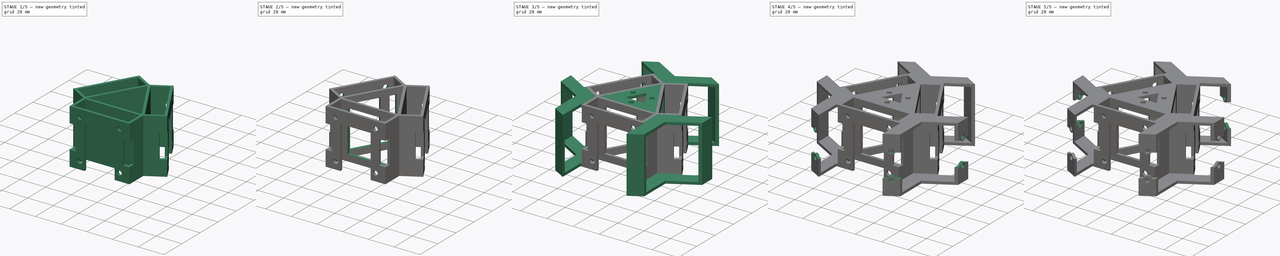
[diagram: build sequence overview — one tinted view per stage of 5, left to right]
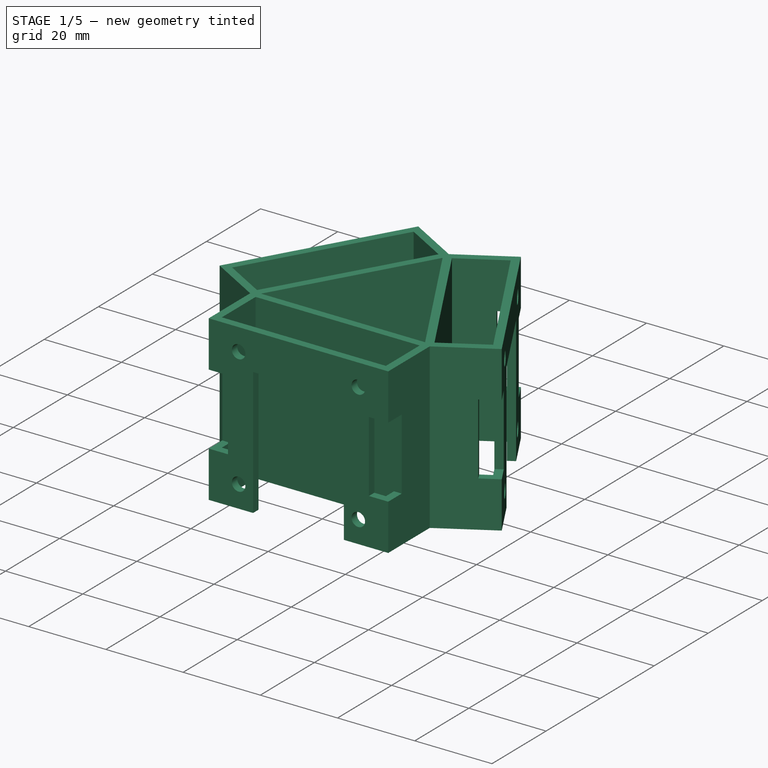
[diagram: stage 1 of 5 — iso view after this stage's code; geometry added in this stage tinted green]
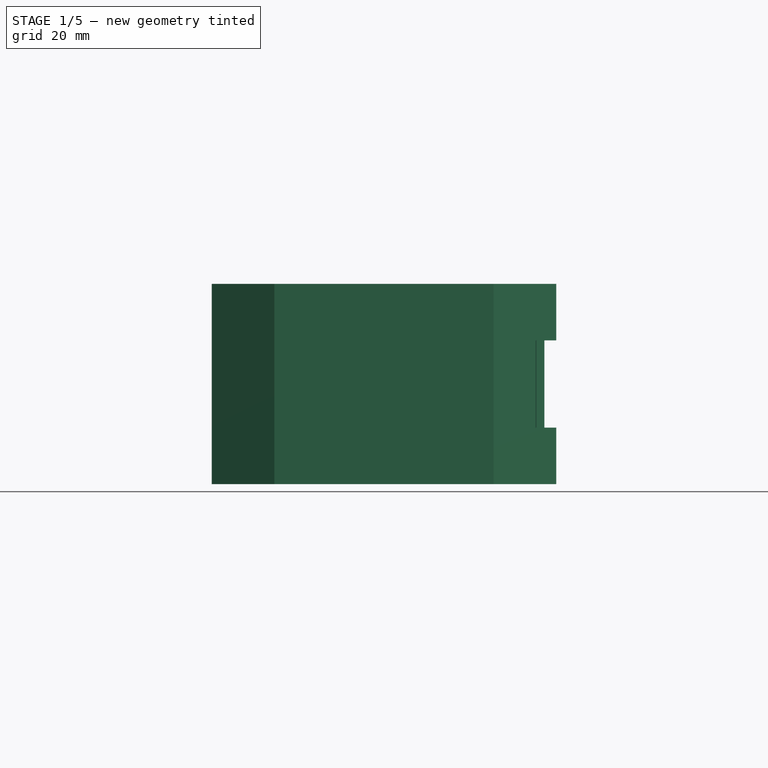
[diagram: stage 1 of 5 — front view after this stage's code; geometry added in this stage tinted green]
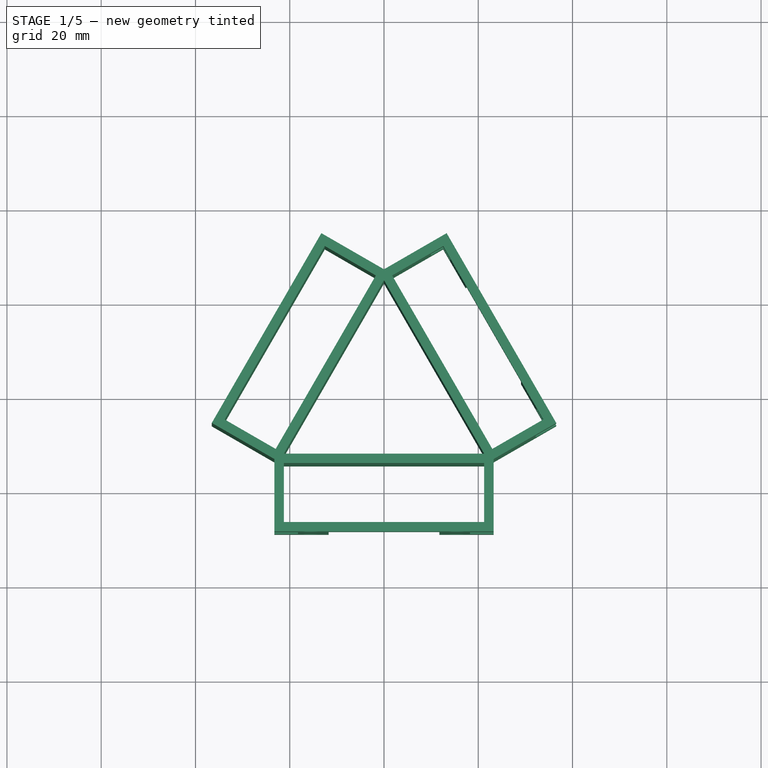
[diagram: stage 1 of 5 — top view after this stage's code; geometry added in this stage tinted green]
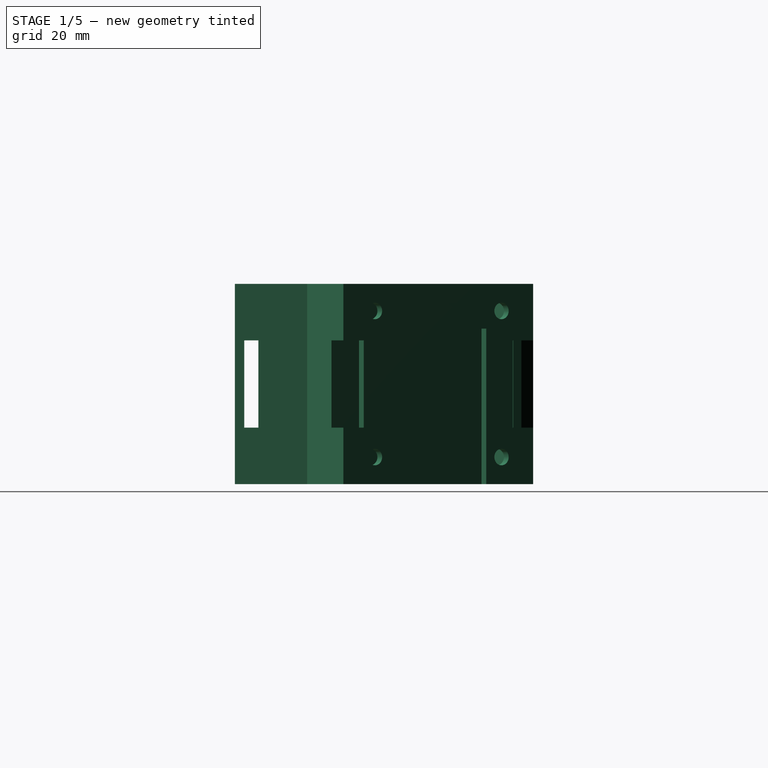
[diagram: stage 1 of 5 — right view after this stage's code; geometry added in this stage tinted green]
FCSTD DOCUMENT  (FreeCAD 0.19R)
Label: core1_motor_sensor_4
License: All rights reserved
LicenseURL: http://en.wikipedia.org/wiki/All_rights_reserved
objects: Sketcher::SketchObject×16, PartDesign::Pocket×12, PartDesign::Pad×4, PartDesign::Body×1
note: 49 computed .brp shape members not serialized (recipe doc carries the construction recipe); baked Part::Feature solids carry a one-line shape summary decoded from their .brp

FEATURE [Sketcher::SketchObject] Sketch
  FullyConstrained = false
  MapMode = 5
  Support = -> [XY_Plane]
  sketch-geometry (31):
    g0: LineSegment StartX=-3.6e-15 StartY=24.5374 StartZ=0 EndX=-21.25 EndY=-12.2687 EndZ=0
    g1: LineSegment StartX=-21.25 StartY=-12.2687 StartZ=0 EndX=21.25 EndY=-12.2687 EndZ=0
    g2: LineSegment StartX=21.25 StartY=-12.2687 StartZ=0 EndX=-7.1e-15 EndY=24.5374 EndZ=0
    g3: Circle CenterX=0 CenterY=0 CenterZ=0 NormalX=0 NormalY=0 NormalZ=1 AngleXU=0 Radius=24.5374
    g4: LineSegment StartX=-21.25 StartY=-12.2687 StartZ=0 EndX=-21.25 EndY=-30.4428 EndZ=0
    g5: LineSegment StartX=21.25 StartY=-12.2687 StartZ=0 EndX=21.25 EndY=-30.1968 EndZ=0
    g6: LineSegment StartX=-21.25 StartY=-12.2687 StartZ=0 EndX=-34.7381 EndY=-4.48132 EndZ=0
    g7: LineSegment StartX=-3.6e-15 StartY=24.5374 StartZ=0 EndX=-16.7515 EndY=34.2088 EndZ=0
    g8: LineSegment StartX=-3.6e-15 StartY=24.5374 StartZ=0 EndX=13.3972 EndY=32.2723 EndZ=0
    g9: LineSegment StartX=21.25 StartY=-12.2687 StartZ=0 EndX=34.1854 EndY=-4.80044 EndZ=0
    g10: LineSegment StartX=-21.25 StartY=-14.2687 StartZ=0 EndX=-21.25 EndY=-26.7687 EndZ=0
    g11: LineSegment StartX=-21.25 StartY=-26.7687 StartZ=0 EndX=21.25 EndY=-26.7687 EndZ=0
    g12: LineSegment StartX=21.25 StartY=-26.7687 StartZ=0 EndX=21.25 EndY=-14.2687 EndZ=0
    g13: LineSegment StartX=21.25 StartY=-14.2687 StartZ=0 EndX=-21.25 EndY=-14.2687 EndZ=0
    g14: LineSegment StartX=-22.9821 StartY=-11.2687 StartZ=0 EndX=-33.8074 EndY=-5.01869 EndZ=0
    g15: LineSegment StartX=-33.8074 StartY=-5.01869 StartZ=0 EndX=-12.5574 EndY=31.7874 EndZ=0
    g16: LineSegment StartX=-12.5574 StartY=31.7874 StartZ=0 EndX=-1.73205 EndY=25.5374 EndZ=0
    g17: LineSegment StartX=-1.73205 StartY=25.5374 StartZ=0 EndX=-22.9821 EndY=-11.2687 EndZ=0
    g18: LineSegment StartX=22.9821 StartY=-11.2687 StartZ=0 EndX=1.73205 EndY=25.5374 EndZ=0
    g19: LineSegment StartX=1.73205 StartY=25.5374 StartZ=0 EndX=12.5574 EndY=31.7874 EndZ=0
    g20: LineSegment StartX=12.5574 StartY=31.7874 StartZ=0 EndX=33.8074 EndY=-5.01869 EndZ=0
    g21: LineSegment StartX=33.8074 StartY=-5.01869 StartZ=0 EndX=22.9821 EndY=-11.2687 EndZ=0
    g22: LineSegment StartX=23.25 StartY=-28.7687 StartZ=0 EndX=-23.25 EndY=-28.7687 EndZ=0
    g23: LineSegment StartX=-23.25 StartY=-28.7687 StartZ=0 EndX=-23.25 EndY=-13.4234 EndZ=0
    g24: LineSegment StartX=-23.25 StartY=-13.4234 StartZ=0 EndX=-36.5394 EndY=-5.75074 EndZ=0
    g25: LineSegment StartX=-36.5394 StartY=-5.75074 StartZ=0 EndX=-13.2894 EndY=34.5194 EndZ=0
    g26: LineSegment StartX=-13.2894 StartY=34.5194 StartZ=0 EndX=0 EndY=26.8468 EndZ=0
    g27: LineSegment StartX=0 StartY=26.8468 StartZ=0 EndX=13.2894 EndY=34.5194 EndZ=0
    g28: LineSegment StartX=13.2894 StartY=34.5194 StartZ=0 EndX=36.5394 EndY=-5.75074 EndZ=0
    g29: LineSegment StartX=36.5394 StartY=-5.75074 StartZ=0 EndX=23.25 EndY=-13.4234 EndZ=0
    g30: LineSegment StartX=23.25 StartY=-13.4234 StartZ=0 EndX=23.25 EndY=-28.7687 EndZ=0
  constraints (86):
    c: Coincident(g0,g1)
    c: Coincident(g1,g2)
    c: Coincident(g2,g0)
    c: Equal(g0,g1)
    c: Equal(g0,g2)
    c: PointOnObject(g0,g3)
    c: PointOnObject(g1,g3)
    c: PointOnObject(g2,g3)
    c: Coincident(g3,g-1)
    c: PointOnObject(g2,g-2)
    c: Distance(g1) = 42.5
    c: Coincident(g4,g0)
    c: Vertical(g4)
    c: Coincident(g5,g1)
    c: Vertical(g5)
    c: Coincident(g6,g0)
    c: Coincident(g7,g0)
    c: Coincident(g8,g0)
    c: Coincident(g9,g1)
    c: Angle(g0,g6) = 1.5708
    c: Angle(g7,g0) = 1.5708
    c: Angle(g2,g8) = 1.5708
    c: Angle(g9,g2) = 1.5708
    c: PointOnObject(g10,g4)
    c: PointOnObject(g10,g4)
    c: Coincident(g10,g11)
    c: PointOnObject(g11,g5)
    c: Horizontal(g11)
    c: Coincident(g11,g12)
    c: PointOnObject(g12,g5)
    c: Coincident(g12,g13)
    c: Coincident(g13,g10)
    c: Horizontal(g13)
    c: Distance(g10) = 12.5
    c: Distance(g10,g1) = 2
    c: PointOnObject(g14,g6)
    c: PointOnObject(g14,g6)
    c: Coincident(g14,g15)
    c: PointOnObject(g15,g7)
    c: Coincident(g15,g16)
    c: Coincident(g16,g17)
    c: Coincident(g17,g14)
    c: Parallel(g0,g17)
    c: Distance(g14) = 12.5
    c: Parallel(g17,g15)
    c: Distance(g14,g0) = 2
    c: PointOnObject(g16,g7)
    c: PointOnObject(g18,g9)
    c: PointOnObject(g18,g8)
    c: Coincident(g18,g19)
    c: PointOnObject(g19,g8)
    c: Coincident(g19,g20)
    c: PointOnObject(g20,g9)
    c: Coincident(g20,g21)
    c: Coincident(g21,g18)
    c: Parallel(g2,g18)
    c: Parallel(g18,g20)
    c: Distance(g21) = 12.5
    c: Distance(g18,g2) = 2
    c: Horizontal(g22)
    c: Coincident(g22,g23)
    c: Vertical(g23)
    c: Coincident(g23,g24)
    c: Coincident(g24,g25)
    c: Coincident(g25,g26)
    c: PointOnObject(g26,g-2)
    c: Coincident(g26,g27)
    c: Coincident(g27,g28)
    c: Coincident(g28,g29)
    c: Coincident(g29,g30)
    c: Coincident(g30,g22)
    c: Vertical(g30)
    c: Parallel(g24,g14)
    c: Parallel(g15,g25)
    c: Parallel(g16,g26)
    c: Parallel(g19,g27)
    c: Parallel(g28,g20)
    c: Parallel(g29,g21)
    c: Distance(g10,g22) = 2
    c: Distance(g10,g23) = 2
    c: Distance(g14,g24) = 2
    c: Distance(g14,g25) = 2
    c: Distance(g15,g26) = 2
    c: Distance(g19,g28) = 2
    c: Distance(g20,g29) = 2
    c: Distance(g11,g30) = 2
FEATURE [PartDesign::Pad] Pad
  Direction = (1,1,1)
  Length = 42.5
  Length2 = 100
  Profile = -> Sketch
  Type = 0
FEATURE [Sketcher::SketchObject] Sketch001
  ExternalGeometry = -> [Pad]
  FullyConstrained = true
  MapMode = 5
  Placement = pos=(0,-28.7687,0) rot=(1,0,0;1.5708rad)
  Support = -> [Pad]
  sketch-geometry (20):
    g0: LineSegment StartX=-15.5 StartY=36.75 StartZ=0 EndX=15.5 EndY=36.75 EndZ=0
    g1: LineSegment StartX=15.5 StartY=36.75 StartZ=0 EndX=15.5 EndY=5.75 EndZ=0
    g2: LineSegment StartX=15.5 StartY=5.75 StartZ=0 EndX=-15.5 EndY=5.75 EndZ=0
    g3: LineSegment StartX=-15.5 StartY=5.75 StartZ=0 EndX=-15.5 EndY=36.75 EndZ=0
    g4: Circle CenterX=-15.5 CenterY=5.75 CenterZ=0 NormalX=0 NormalY=0 NormalZ=1 AngleXU=0 Radius=1.75
    g5: Circle CenterX=-15.5 CenterY=36.75 CenterZ=0 NormalX=0 NormalY=0 NormalZ=1 AngleXU=0 Radius=1.75
    g6: Circle CenterX=15.5 CenterY=36.75 CenterZ=0 NormalX=0 NormalY=0 NormalZ=1 AngleXU=0 Radius=1.75
    g7: Circle CenterX=15.5 CenterY=5.75 CenterZ=0 NormalX=0 NormalY=0 NormalZ=1 AngleXU=0 Radius=1.75
    g8: LineSegment StartX=-23.25 StartY=30.5 StartZ=0 EndX=-18.25 EndY=30.5 EndZ=0
    g9: LineSegment StartX=-18.25 StartY=30.5 StartZ=0 EndX=-18.25 EndY=12 EndZ=0
    g10: LineSegment StartX=-18.25 StartY=12 StartZ=0 EndX=-23.25 EndY=12 EndZ=0
    g11: LineSegment StartX=-23.25 StartY=12 StartZ=0 EndX=-23.25 EndY=30.5 EndZ=0
    g12: LineSegment StartX=23.25 StartY=30.5 StartZ=0 EndX=18.25 EndY=30.5 EndZ=0
    g13: LineSegment StartX=18.25 StartY=30.5 StartZ=0 EndX=18.25 EndY=12 EndZ=0
    g14: LineSegment StartX=18.25 StartY=12 StartZ=0 EndX=23.25 EndY=12 EndZ=0
    g15: LineSegment StartX=23.25 StartY=12 StartZ=0 EndX=23.25 EndY=30.5 EndZ=0
    g16: LineSegment StartX=11.75 StartY=0 StartZ=0 EndX=-11.75 EndY=0 EndZ=0
    g17: LineSegment StartX=-11.75 StartY=0 StartZ=0 EndX=-11.75 EndY=33 EndZ=0
    g18: LineSegment StartX=-11.75 StartY=33 StartZ=0 EndX=11.75 EndY=33 EndZ=0
    g19: LineSegment StartX=11.75 StartY=33 StartZ=0 EndX=11.75 EndY=0 EndZ=0
  constraints (56):
    c: Coincident(g0,g1)
    c: Coincident(g1,g2)
    c: Coincident(g2,g3)
    c: Coincident(g3,g0)
    c: Horizontal(g0)
    c: Horizontal(g2)
    c: Vertical(g1)
    c: Vertical(g3)
    c: Distance(g0) = 31
    c: Distance(g3) = 31
    c: Distance(g2,g-6) = 5.75
    c: Distance(g2,g-4) = 7.75
    c: Coincident(g4,g2)
    c: Coincident(g5,g0)
    c: Coincident(g6,g0)
    c: Coincident(g7,g1)
    c: Diameter(g5) = 3.5
    c: Diameter(g4) = 3.5
    c: Diameter(g6) = 3.5
    c: Diameter(g7) = 3.5
    c: Coincident(g8,g9)
    c: Coincident(g9,g10)
    c: Coincident(g10,g11)
    c: Coincident(g11,g8)
    c: Horizontal(g8)
    c: Horizontal(g10)
    c: Vertical(g9)
    c: Vertical(g11)
    c: PointOnObject(g8,g-4)
    c: Distance(g8) = 5
    c: Distance(g8,g-3) = 12
    c: Distance(g9,g-6) = 12
    c: Coincident(g12,g13)
    c: Coincident(g13,g14)
    c: Coincident(g14,g15)
    c: Coincident(g15,g12)
    c: Horizontal(g12)
    c: Horizontal(g14)
    c: Vertical(g13)
    c: Vertical(g15)
    c: PointOnObject(g12,g-5)
    c: Distance(g12) = 5
    c: Distance(g12,g-3) = 12
    c: Distance(g13,g-6) = 12
    c: Coincident(g16,g17)
    c: Coincident(g17,g18)
    c: Coincident(g18,g19)
    c: Coincident(g19,g16)
    c: Horizontal(g16)
    c: Horizontal(g18)
    c: Vertical(g17)
    c: Vertical(g19)
    c: PointOnObject(g16,g-6)
    c: Distance(g7,g19) = 3.75
    c: Distance(g4,g17) = 3.75
    c: Distance(g17,g0) = 3.75
FEATURE [PartDesign::Pocket] Pocket
  BaseFeature = -> Pad
  Length = 5
  Length2 = 100
  Profile = -> Sketch001
  Type = 0
FEATURE [Sketcher::SketchObject] Sketch002
  ExternalGeometry = -> [Pocket]
  FullyConstrained = true
  MapMode = 5
  Placement = pos=(24.9144,14.3843,0) rot=(0.377964,0.654654,0.654654;2.41886rad)
  Support = -> [Pocket]
  sketch-geometry (20):
    g0: LineSegment StartX=-15.5 StartY=36.75 StartZ=0 EndX=15.5 EndY=36.75 EndZ=0
    g1: LineSegment StartX=15.5 StartY=36.75 StartZ=0 EndX=15.5 EndY=5.75 EndZ=0
    g2: LineSegment StartX=15.5 StartY=5.75 StartZ=0 EndX=-15.5 EndY=5.75 EndZ=0
    g3: LineSegment StartX=-15.5 StartY=5.75 StartZ=0 EndX=-15.5 EndY=36.75 EndZ=0
    g4: Circle CenterX=-15.5 CenterY=36.75 CenterZ=0 NormalX=0 NormalY=0 NormalZ=1 AngleXU=0 Radius=1.75
    g5: Circle CenterX=-15.5 CenterY=5.75 CenterZ=0 NormalX=0 NormalY=0 NormalZ=1 AngleXU=0 Radius=1.75
    g6: Circle CenterX=15.5 CenterY=36.75 CenterZ=0 NormalX=0 NormalY=0 NormalZ=1 AngleXU=0 Radius=1.75
    g7: Circle CenterX=15.5 CenterY=5.75 CenterZ=0 NormalX=0 NormalY=0 NormalZ=1 AngleXU=0 Radius=1.75
    g8: LineSegment StartX=-23.25 StartY=12 StartZ=0 EndX=-18.25 EndY=12 EndZ=0
    g9: LineSegment StartX=-18.25 StartY=12 StartZ=0 EndX=-18.25 EndY=30.5 EndZ=0
    g10: LineSegment StartX=-18.25 StartY=30.5 StartZ=0 EndX=-23.25 EndY=30.5 EndZ=0
    g11: LineSegment StartX=-23.25 StartY=30.5 StartZ=0 EndX=-23.25 EndY=12 EndZ=0
    g12: LineSegment StartX=23.25 StartY=12 StartZ=0 EndX=18.25 EndY=12 EndZ=0
    g13: LineSegment StartX=18.25 StartY=12 StartZ=0 EndX=18.25 EndY=30.5 EndZ=0
    g14: LineSegment StartX=18.25 StartY=30.5 StartZ=0 EndX=23.25 EndY=30.5 EndZ=0
    g15: LineSegment StartX=23.25 StartY=30.5 StartZ=0 EndX=23.25 EndY=12 EndZ=0
    g16: LineSegment StartX=11.75 StartY=8e-16 StartZ=0 EndX=-11.75 EndY=8e-16 EndZ=0
    g17: LineSegment StartX=-11.75 StartY=8e-16 StartZ=0 EndX=-11.75 EndY=33 EndZ=0
    g18: LineSegment StartX=-11.75 StartY=33 StartZ=0 EndX=11.75 EndY=33 EndZ=0
    g19: LineSegment StartX=11.75 StartY=33 StartZ=0 EndX=11.75 EndY=0 EndZ=0
  constraints (56):
    c: Coincident(g0,g1)
    c: Coincident(g1,g2)
    c: Coincident(g2,g3)
    c: Coincident(g3,g0)
    c: Horizontal(g0)
    c: Horizontal(g2)
    c: Vertical(g1)
    c: Vertical(g3)
    c: Distance(g0) = 31
    c: Distance(g0,g-3) = 5.75
    c: Distance(g0,g-4) = 7.75
    c: Distance(g3) = 31
    c: Coincident(g4,g0)
    c: Coincident(g5,g2)
    c: Coincident(g6,g0)
    c: Coincident(g7,g1)
    c: Diameter(g4) = 3.5
    c: Diameter(g6) = 3.5
    c: Diameter(g7) = 3.5
    c: Diameter(g5) = 3.5
    c: Coincident(g8,g9)
    c: Coincident(g9,g10)
    c: Coincident(g10,g11)
    c: Coincident(g11,g8)
    c: Horizontal(g8)
    c: Horizontal(g10)
    c: Vertical(g9)
    c: Vertical(g11)
    c: PointOnObject(g8,g-4)
    c: Coincident(g12,g13)
    c: Coincident(g13,g14)
    c: Coincident(g14,g15)
    c: Coincident(g15,g12)
    c: Horizontal(g12)
    c: Horizontal(g14)
    c: Vertical(g13)
    c: Vertical(g15)
    c: PointOnObject(g12,g-5)
    c: Coincident(g16,g17)
    c: Coincident(g17,g18)
    c: Coincident(g18,g19)
    c: Coincident(g19,g16)
    c: Horizontal(g16)
    c: Horizontal(g18)
    c: Vertical(g17)
    c: Vertical(g19)
    c: PointOnObject(g16,g-6)
    c: Distance(g10) = 5
    c: Distance(g14) = 5
    c: Distance(g9,g-3) = 12
    c: Distance(g8,g-6) = 12
    c: Distance(g12,g-6) = 12
    c: Distance(g13,g-3) = 12
    c: Distance(g17,g0) = 3.75
    c: Distance(g5,g17) = 3.75
    c: Distance(g7,g19) = 3.75
FEATURE [PartDesign::Pocket] Pocket001
  BaseFeature = -> Pocket
  Length = 5
  Length2 = 100
  Profile = -> Sketch002
  Type = 0
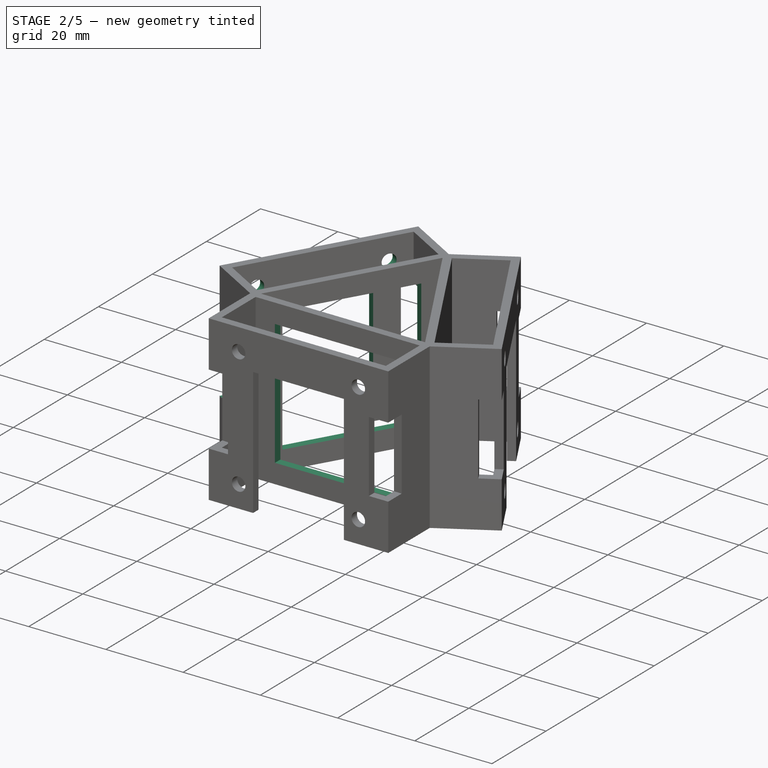
[diagram: stage 2 of 5 — iso view after this stage's code; geometry added in this stage tinted green]
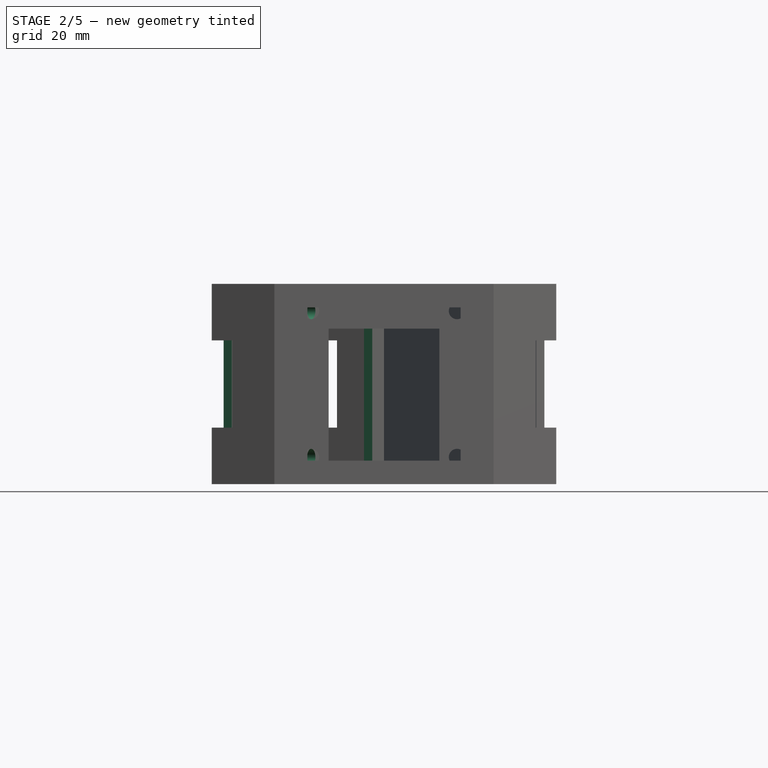
[diagram: stage 2 of 5 — front view after this stage's code; geometry added in this stage tinted green]
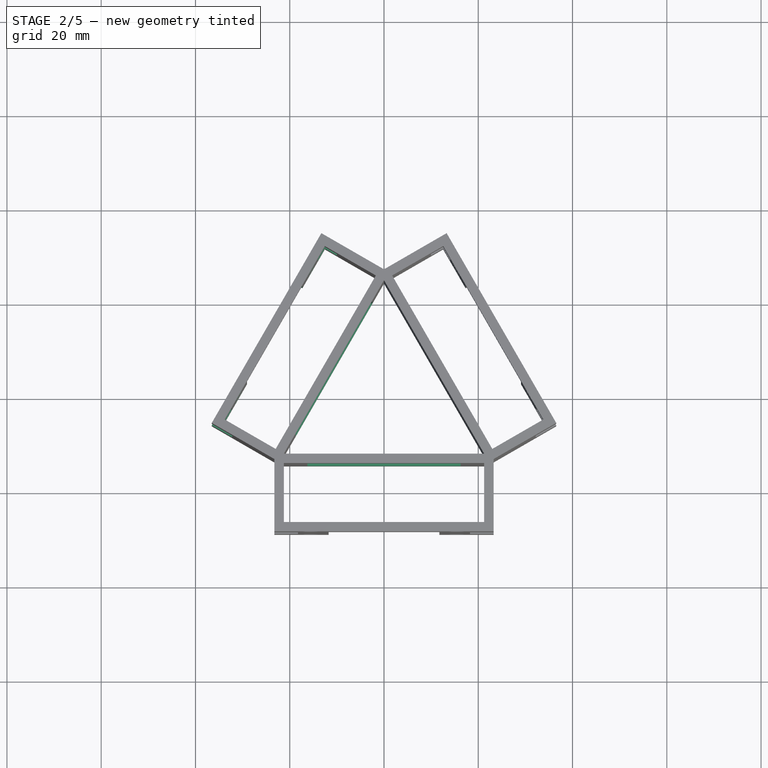
[diagram: stage 2 of 5 — top view after this stage's code; geometry added in this stage tinted green]
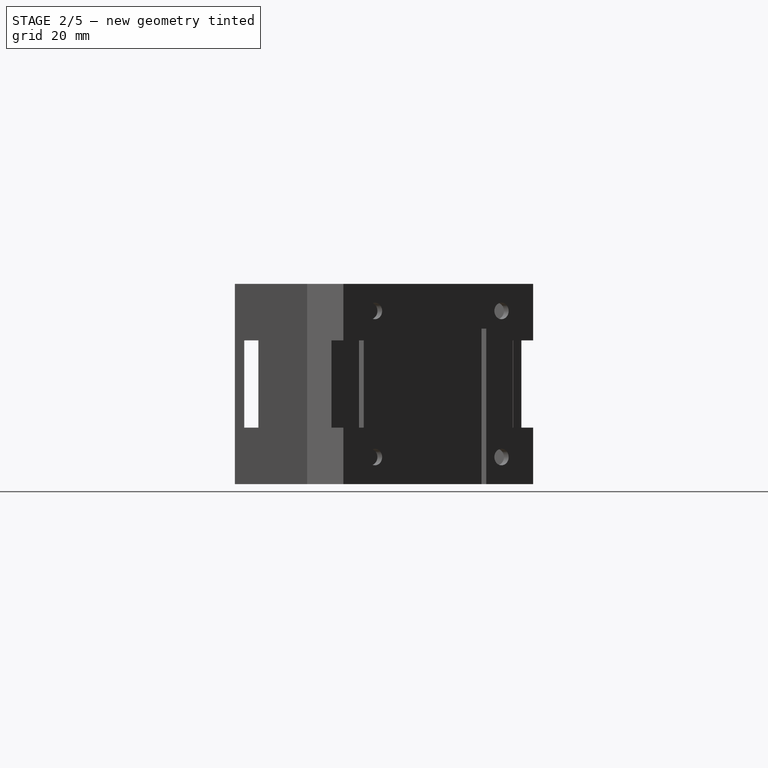
[diagram: stage 2 of 5 — right view after this stage's code; geometry added in this stage tinted green]
FEATURE [Sketcher::SketchObject] Sketch003
  ExternalGeometry = -> [Pocket001]
  FullyConstrained = true
  MapMode = 5
  Placement = pos=(-24.9144,14.3843,0) rot=(-0.377964,0.654654,0.654654;3.86433rad)
  Support = -> [Pocket001]
  sketch-geometry (20):
    g0: LineSegment StartX=-15.5 StartY=36.75 StartZ=0 EndX=15.5 EndY=36.75 EndZ=0
    g1: LineSegment StartX=15.5 StartY=36.75 StartZ=0 EndX=15.5 EndY=5.75 EndZ=0
    g2: LineSegment StartX=15.5 StartY=5.75 StartZ=0 EndX=-15.5 EndY=5.75 EndZ=0
    g3: LineSegment StartX=-15.5 StartY=5.75 StartZ=0 EndX=-15.5 EndY=36.75 EndZ=0
    g4: Circle CenterX=-15.5 CenterY=36.75 CenterZ=0 NormalX=0 NormalY=0 NormalZ=1 AngleXU=0 Radius=1.75
    g5: Circle CenterX=15.5 CenterY=36.75 CenterZ=0 NormalX=0 NormalY=0 NormalZ=1 AngleXU=0 Radius=1.75
    g6: Circle CenterX=-15.5 CenterY=5.75 CenterZ=0 NormalX=0 NormalY=0 NormalZ=1 AngleXU=0 Radius=1.75
    g7: Circle CenterX=15.5 CenterY=5.75 CenterZ=0 NormalX=0 NormalY=0 NormalZ=1 AngleXU=0 Radius=1.75
    g8: LineSegment StartX=-23.25 StartY=30.5 StartZ=0 EndX=-18.25 EndY=30.5 EndZ=0
    g9: LineSegment StartX=-18.25 StartY=30.5 StartZ=0 EndX=-18.25 EndY=12 EndZ=0
    g10: LineSegment StartX=-18.25 StartY=12 StartZ=0 EndX=-23.25 EndY=12 EndZ=0
    g11: LineSegment StartX=-23.25 StartY=12 StartZ=0 EndX=-23.25 EndY=30.5 EndZ=0
    g12: LineSegment StartX=23.25 StartY=30.5 StartZ=0 EndX=18.25 EndY=30.5 EndZ=0
    g13: LineSegment StartX=18.25 StartY=30.5 StartZ=0 EndX=18.25 EndY=12 EndZ=0
    g14: LineSegment StartX=18.25 StartY=12 StartZ=0 EndX=23.25 EndY=12 EndZ=0
    g15: LineSegment StartX=23.25 StartY=12 StartZ=0 EndX=23.25 EndY=30.5 EndZ=0
    g16: LineSegment StartX=11.75 StartY=0 StartZ=0 EndX=-11.75 EndY=0 EndZ=0
    g17: LineSegment StartX=-11.75 StartY=0 StartZ=0 EndX=-11.75 EndY=33 EndZ=0
    g18: LineSegment StartX=-11.75 StartY=33 StartZ=0 EndX=11.75 EndY=33 EndZ=0
    g19: LineSegment StartX=11.75 StartY=33 StartZ=0 EndX=11.75 EndY=0 EndZ=0
  constraints (56):
    c: Coincident(g0,g1)
    c: Coincident(g1,g2)
    c: Coincident(g2,g3)
    c: Coincident(g3,g0)
    c: Horizontal(g0)
    c: Horizontal(g2)
    c: Vertical(g1)
    c: Vertical(g3)
    c: Distance(g0) = 31
    c: Distance(g3) = 31
    c: Distance(g0,g-3) = 5.75
    c: Distance(g0,g-4) = 7.75
    c: Coincident(g4,g0)
    c: Coincident(g5,g0)
    c: Coincident(g6,g2)
    c: Coincident(g7,g1)
    c: Diameter(g4) = 3.5
    c: Diameter(g5) = 3.5
    c: Diameter(g7) = 3.5
    c: Diameter(g6) = 3.5
    c: Coincident(g8,g9)
    c: Coincident(g9,g10)
    c: Coincident(g10,g11)
    c: Coincident(g11,g8)
    c: Horizontal(g8)
    c: Horizontal(g10)
    c: Vertical(g9)
    c: Vertical(g11)
    c: PointOnObject(g8,g-4)
    c: Coincident(g12,g13)
    c: Coincident(g13,g14)
    c: Coincident(g14,g15)
    c: Coincident(g15,g12)
    c: Horizontal(g12)
    c: Horizontal(g14)
    c: Vertical(g13)
    c: Vertical(g15)
    c: PointOnObject(g12,g-5)
    c: Coincident(g16,g17)
    c: Coincident(g17,g18)
    c: Coincident(g18,g19)
    c: Coincident(g19,g16)
    c: Horizontal(g16)
    c: Horizontal(g18)
    c: Vertical(g17)
    c: Vertical(g19)
    c: PointOnObject(g16,g-6)
    c: Distance(g8) = 5
    c: Distance(g12) = 5
    c: Distance(g12,g-3) = 12
    c: Distance(g13,g-6) = 12
    c: Distance(g9,g-6) = 12
    c: Distance(g8,g-3) = 12
    c: Distance(g18,g0) = 3.75
    c: Distance(g7,g19) = 3.75
    c: Distance(g6,g17) = 3.75
FEATURE [PartDesign::Pocket] Pocket002
  BaseFeature = -> Pocket001
  Length = 5
  Length2 = 100
  Profile = -> Sketch003
  Type = 0
FEATURE [Sketcher::SketchObject] Sketch004
  ExternalGeometry = -> [Pocket002]
  FullyConstrained = true
  MapMode = 5
  Placement = pos=(-12.3571,7.13435,0) rot=(-0.377964,0.654654,0.654654;3.86433rad)
  Support = -> [Pocket002]
  sketch-geometry (4):
    g0: LineSegment StartX=-16.25 StartY=37.5 StartZ=0 EndX=16.25 EndY=37.5 EndZ=0
    g1: LineSegment StartX=16.25 StartY=37.5 StartZ=0 EndX=16.25 EndY=5 EndZ=0
    g2: LineSegment StartX=16.25 StartY=5 StartZ=0 EndX=-16.25 EndY=5 EndZ=0
    g3: LineSegment StartX=-16.25 StartY=5 StartZ=0 EndX=-16.25 EndY=37.5 EndZ=0
  constraints (12):
    c: Coincident(g0,g1)
    c: Coincident(g1,g2)
    c: Coincident(g2,g3)
    c: Coincident(g3,g0)
    c: Horizontal(g0)
    c: Horizontal(g2)
    c: Vertical(g1)
    c: Vertical(g3)
    c: Distance(g-3,g3) = 5
    c: Distance(g-3,g0) = 5
    c: Distance(g-4,g2) = 5
    c: Distance(g-4,g1) = 5
FEATURE [PartDesign::Pocket] Pocket003
  BaseFeature = -> Pocket002
  Length = 2
  Length2 = 100
  Profile = -> Sketch004
  Type = 0
FEATURE [Sketcher::SketchObject] Sketch005
  ExternalGeometry = -> [Pocket003]
  FullyConstrained = true
  MapMode = 5
  Placement = pos=(0,-14.2687,0) rot=(1,0,0;1.5708rad)
  Support = -> [Pocket003]
  sketch-geometry (4):
    g0: LineSegment StartX=-16.25 StartY=37.5 StartZ=0 EndX=16.25 EndY=37.5 EndZ=0
    g1: LineSegment StartX=16.25 StartY=37.5 StartZ=0 EndX=16.25 EndY=5 EndZ=0
    g2: LineSegment StartX=16.25 StartY=5 StartZ=0 EndX=-16.25 EndY=5 EndZ=0
    g3: LineSegment StartX=-16.25 StartY=5 StartZ=0 EndX=-16.25 EndY=37.5 EndZ=0
  constraints (12):
    c: Coincident(g0,g1)
    c: Coincident(g1,g2)
    c: Coincident(g2,g3)
    c: Coincident(g3,g0)
    c: Horizontal(g0)
    c: Horizontal(g2)
    c: Vertical(g1)
    c: Vertical(g3)
    c: Distance(g-4,g3) = 5
    c: Distance(g-4,g0) = 5
    c: Distance(g-3,g2) = 5
    c: Distance(g-3,g1) = 5
FEATURE [PartDesign::Pocket] Pocket004
  BaseFeature = -> Pocket003
  Length = 2
  Length2 = 100
  Profile = -> Sketch005
  Type = 0
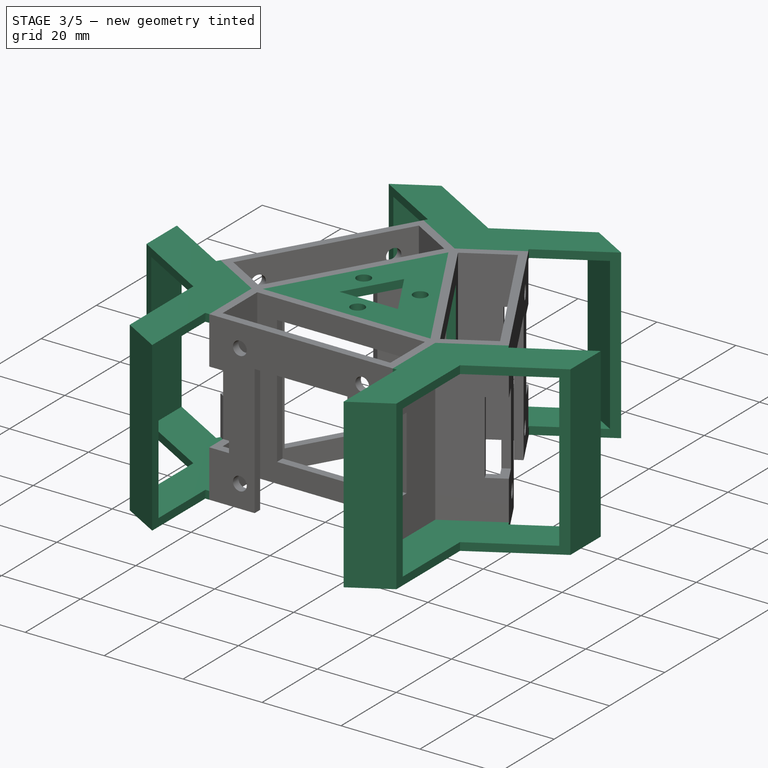
[diagram: stage 3 of 5 — iso view after this stage's code; geometry added in this stage tinted green]
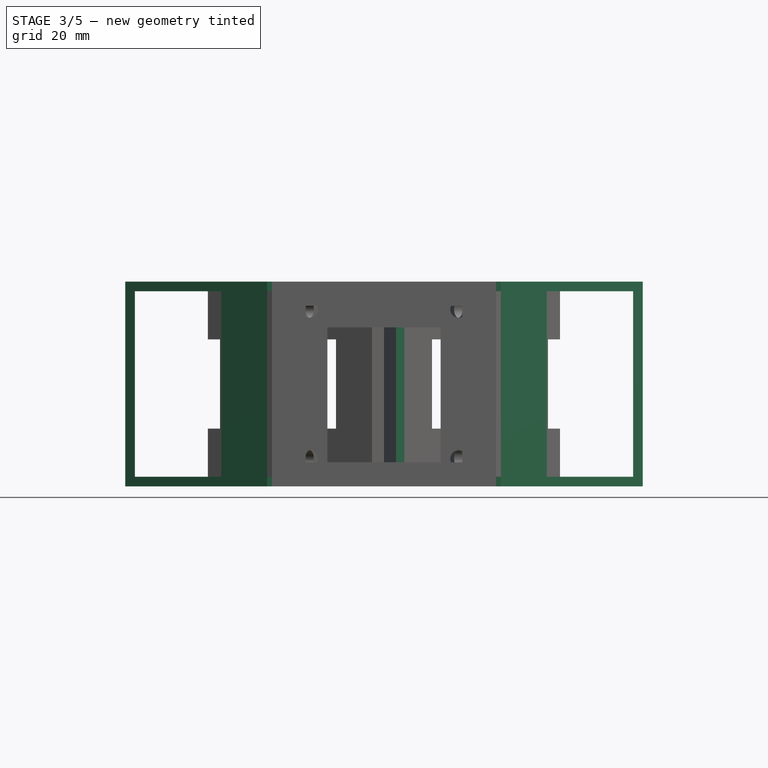
[diagram: stage 3 of 5 — front view after this stage's code; geometry added in this stage tinted green]
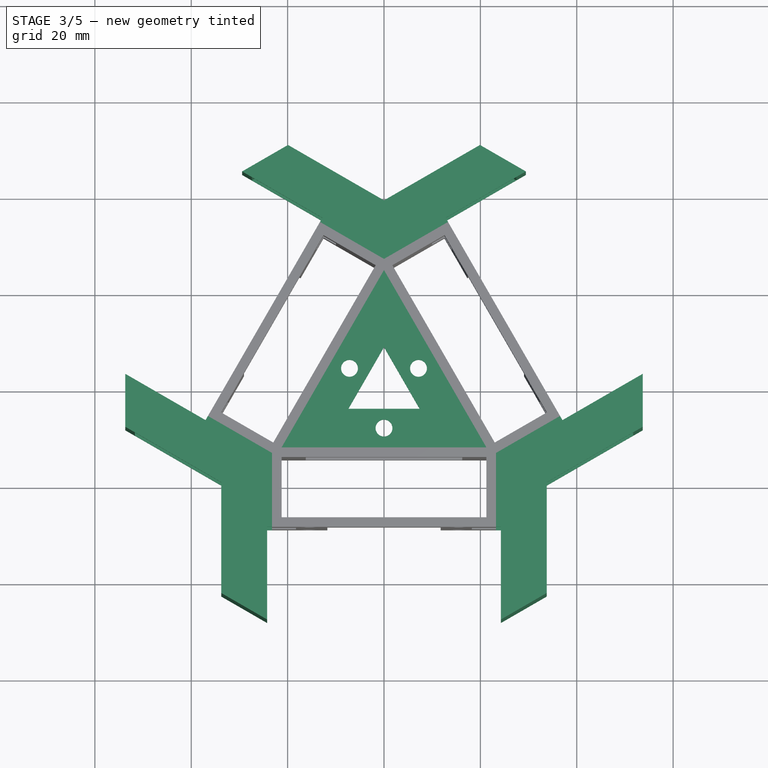
[diagram: stage 3 of 5 — top view after this stage's code; geometry added in this stage tinted green]
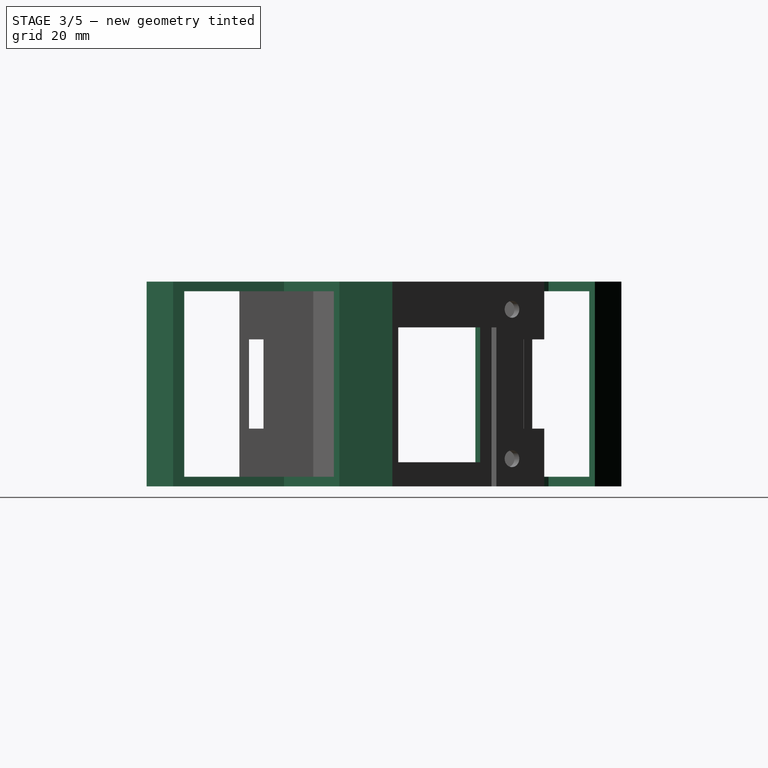
[diagram: stage 3 of 5 — right view after this stage's code; geometry added in this stage tinted green]
FEATURE [Sketcher::SketchObject] Sketch006
  ExternalGeometry = -> [Pocket004]
  FullyConstrained = true
  MapMode = 5
  Placement = pos=(12.3571,7.13435,0) rot=(0.377964,0.654654,0.654654;2.41886rad)
  Support = -> [Pocket004]
  sketch-geometry (4):
    g0: LineSegment StartX=-16.25 StartY=37.5 StartZ=0 EndX=16.25 EndY=37.5 EndZ=0
    g1: LineSegment StartX=16.25 StartY=37.5 StartZ=0 EndX=16.25 EndY=5 EndZ=0
    g2: LineSegment StartX=16.25 StartY=5 StartZ=0 EndX=-16.25 EndY=5 EndZ=0
    g3: LineSegment StartX=-16.25 StartY=5 StartZ=0 EndX=-16.25 EndY=37.5 EndZ=0
  constraints (12):
    c: Coincident(g0,g1)
    c: Coincident(g1,g2)
    c: Coincident(g2,g3)
    c: Coincident(g3,g0)
    c: Horizontal(g0)
    c: Horizontal(g2)
    c: Vertical(g1)
    c: Vertical(g3)
    c: Distance(g-3,g3) = 5
    c: Distance(g-3,g0) = 5
    c: Distance(g-4,g2) = 5
    c: Distance(g-4,g1) = 5
FEATURE [PartDesign::Pocket] Pocket005
  BaseFeature = -> Pocket004
  Length = 2
  Length2 = 100
  Profile = -> Sketch006
  Type = 0
FEATURE [Sketcher::SketchObject] Sketch007
  ExternalGeometry = -> [Pocket005]
  FullyConstrained = true
  MapMode = 5
  Placement = pos=(0,0,42.5) rot=(0,0,1;0rad)
  Support = -> [Pocket005]
  sketch-geometry (52):
    g0: LineSegment StartX=-53.6962 StartY=0 StartZ=0 EndX=-26.8481 EndY=-46.5022 EndZ=0
    g1: LineSegment StartX=-26.8481 StartY=-46.5022 StartZ=0 EndX=26.8481 EndY=-46.5022 EndZ=0
    g2: LineSegment StartX=26.8481 StartY=-46.5022 StartZ=0 EndX=53.6962 EndY=7.1e-15 EndZ=0
    g3: LineSegment StartX=53.6962 StartY=7.1e-15 StartZ=0 EndX=26.8481 EndY=46.5022 EndZ=0
    g4: LineSegment StartX=26.8481 StartY=46.5022 StartZ=0 EndX=-26.8481 EndY=46.5022 EndZ=0
    g5: LineSegment StartX=-26.8481 StartY=46.5022 StartZ=0 EndX=-53.6962 EndY=0 EndZ=0
    g6: Circle CenterX=0 CenterY=0 CenterZ=0 NormalX=0 NormalY=0 NormalZ=1 AngleXU=0 Radius=53.6962
    g7: LineSegment StartX=-23.25 StartY=-28.7687 StartZ=0 EndX=-24.25 EndY=-28.7687 EndZ=0
    g8: LineSegment StartX=-24.25 StartY=-28.7687 StartZ=0 EndX=-24.25 EndY=-48.0022 EndZ=0
    g9: LineSegment StartX=-24.25 StartY=-48.0022 StartZ=0 EndX=-33.7763 EndY=-42.5022 EndZ=0
    g10: LineSegment StartX=-33.7763 StartY=-42.5022 StartZ=0 EndX=-33.7763 EndY=-19.5007 EndZ=0
    g11: LineSegment StartX=-33.7763 StartY=-19.5007 StartZ=0 EndX=-53.6962 EndY=-8 EndZ=0
    g12: LineSegment StartX=-53.6962 StartY=-8 StartZ=0 EndX=-53.6962 EndY=3 EndZ=0
    g13: LineSegment StartX=-53.6962 StartY=3 StartZ=0 EndX=-37.0394 EndY=-6.61677 EndZ=0
    g14: LineSegment StartX=-37.0394 StartY=-6.61677 StartZ=0 EndX=-36.5394 EndY=-5.75074 EndZ=0
    g15: LineSegment StartX=-36.5394 StartY=-5.75074 StartZ=0 EndX=-23.25 EndY=-13.4234 EndZ=0
    g16: LineSegment StartX=-23.25 StartY=-13.4234 StartZ=0 EndX=-23.25 EndY=-28.7687 EndZ=0
    g17: LineSegment StartX=0 StartY=26.8468 StartZ=0 EndX=-13.2894 EndY=34.5194 EndZ=0
    g18: LineSegment StartX=-13.2894 StartY=34.5194 StartZ=0 EndX=-12.7894 EndY=35.3855 EndZ=0
    g19: LineSegment StartX=-12.7894 StartY=35.3855 StartZ=0 EndX=-29.4462 EndY=45.0022 EndZ=0
    g20: LineSegment StartX=-29.4462 StartY=45.0022 StartZ=0 EndX=-19.9199 EndY=50.5022 EndZ=0
    g21: LineSegment StartX=-19.9199 StartY=50.5022 StartZ=0 EndX=0 EndY=39.0015 EndZ=0
    g22: LineSegment StartX=0 StartY=39.0015 StartZ=0 EndX=19.9199 EndY=50.5022 EndZ=0
    g23: LineSegment StartX=19.9199 StartY=50.5022 StartZ=0 EndX=29.4462 EndY=45.0022 EndZ=0
    g24: LineSegment StartX=29.4462 StartY=45.0022 StartZ=0 EndX=12.7894 EndY=35.3855 EndZ=0
    g25: LineSegment StartX=12.7894 StartY=35.3855 StartZ=0 EndX=13.2894 EndY=34.5194 EndZ=0
    g26: LineSegment StartX=13.2894 StartY=34.5194 StartZ=0 EndX=0 EndY=26.8468 EndZ=0
    g27: LineSegment StartX=23.25 StartY=-13.4234 StartZ=0 EndX=23.25 EndY=-28.7687 EndZ=0
    g28: LineSegment StartX=23.25 StartY=-28.7687 StartZ=0 EndX=24.25 EndY=-28.7687 EndZ=0
    g29: LineSegment StartX=24.25 StartY=-28.7687 StartZ=0 EndX=24.25 EndY=-48.0022 EndZ=0
    g30: LineSegment StartX=24.25 StartY=-48.0022 StartZ=0 EndX=33.7763 EndY=-42.5022 EndZ=0
    g31: LineSegment StartX=33.7763 StartY=-42.5022 StartZ=0 EndX=33.7763 EndY=-19.5007 EndZ=0
    g32: LineSegment StartX=33.7763 StartY=-19.5007 StartZ=0 EndX=53.6962 EndY=-8 EndZ=0
    g33: LineSegment StartX=53.6962 StartY=-8 StartZ=0 EndX=53.6962 EndY=3 EndZ=0
    g34: LineSegment StartX=53.6962 StartY=3 StartZ=0 EndX=37.0394 EndY=-6.61677 EndZ=0
    g35: LineSegment StartX=37.0394 StartY=-6.61677 StartZ=0 EndX=36.5394 EndY=-5.75074 EndZ=0
    g36: LineSegment StartX=36.5394 StartY=-5.75074 StartZ=0 EndX=23.25 EndY=-13.4234 EndZ=0
    g37: LineSegment StartX=0 StartY=8.53739 StartZ=0 EndX=-7.39359 EndY=-4.26869 EndZ=0
    g38: LineSegment StartX=-7.39359 StartY=-4.26869 StartZ=0 EndX=7.39359 EndY=-4.26869 EndZ=0
    g39: LineSegment StartX=7.39359 StartY=-4.26869 StartZ=0 EndX=0 EndY=8.53739 EndZ=0
    g40: Circle CenterX=0 CenterY=0 CenterZ=0 NormalX=0 NormalY=0 NormalZ=1 AngleXU=0 Radius=8.53739
    g41: LineSegment StartX=0 StartY=-8.26869 StartZ=0 EndX=7.1609 EndY=4.13435 EndZ=0
    g42: LineSegment StartX=7.1609 StartY=4.13435 StartZ=0 EndX=-7.1609 EndY=4.13435 EndZ=0
    g43: LineSegment StartX=-7.1609 StartY=4.13435 StartZ=0 EndX=0 EndY=-8.26869 EndZ=0
    g44: Circle CenterX=0 CenterY=0 CenterZ=0 NormalX=0 NormalY=0 NormalZ=1 AngleXU=0 Radius=8.26869
    g45: LineSegment StartX=21.25 StartY=-12.2687 StartZ=0 EndX=1.5667e-12 EndY=24.5374 EndZ=0
    g46: LineSegment StartX=1.5667e-12 StartY=24.5374 StartZ=0 EndX=-21.25 EndY=-12.2687 EndZ=0
    g47: LineSegment StartX=-21.25 StartY=-12.2687 StartZ=0 EndX=21.25 EndY=-12.2687 EndZ=0
    g48: Circle CenterX=0 CenterY=0 CenterZ=0 NormalX=0 NormalY=0 NormalZ=1 AngleXU=0 Radius=24.5374
    g49: Circle CenterX=-7.1609 CenterY=4.13435 CenterZ=0 NormalX=0 NormalY=0 NormalZ=1 AngleXU=0 Radius=1.75
    g50: Circle CenterX=7.1609 CenterY=4.13435 CenterZ=0 NormalX=0 NormalY=0 NormalZ=1 AngleXU=0 Radius=1.75
    g51: Circle CenterX=0 CenterY=-8.26869 CenterZ=0 NormalX=0 NormalY=0 NormalZ=1 AngleXU=0 Radius=1.75
  constraints (135):
    c: Coincident(g0,g1)
    c: Coincident(g1,g2)
    c: Coincident(g2,g3)
    c: Coincident(g3,g4)
    c: Coincident(g4,g5)
    c: Coincident(g5,g0)
    c: Equal(g0, g1-g5) x5
    c: PointOnObject(g0,g6)
    c: PointOnObject(g1,g6)
    c: PointOnObject(g2,g6)
    c: PointOnObject(g3,g6)
    c: PointOnObject(g4,g6)
    c: PointOnObject(g5,g6)
    c: Coincident(g6,g-1)
    c: PointOnObject(g5,g-1)
    c: Coincident(g-7,g7)
    c: Coincident(g7,g8)
    c: Vertical(g8)
    c: Coincident(g8,g9)
    c: Coincident(g9,g10)
    c: Vertical(g10)
    c: Coincident(g10,g11)
    c: Coincident(g11,g12)
    c: Vertical(g12)
    c: Coincident(g12,g13)
    c: Coincident(g13,g14)
    c: Coincident(g14,g-8)
    c: Coincident(g14,g15)
    c: Coincident(g15,g-8)
    c: Coincident(g15,g16)
    c: Coincident(g16,g7)
    c: Parallel(g-9,g14)
    c: Distance(g14) = 1
    c: Distance(g7) = 1
    c: Perpendicular(g13,g14)
    c: PointOnObject(g0,g12)
    c: PointOnObject(g0,g9)
    c: Distance(g0,g8) = 3
    c: Distance(g9) = 11
    c: Tangent(g6,g9)
    c: Distance(g12) = 11
    c: Parallel(g13,g11)
    c: Coincident(g-4,g17)
    c: Coincident(g17,g-9)
    c: Coincident(g17,g18)
    c: Coincident(g18,g19)
    c: Coincident(g19,g20)
    c: Coincident(g20,g21)
    c: PointOnObject(g21,g-2)
    c: Coincident(g21,g22)
    c: Coincident(g22,g23)
    c: Coincident(g23,g24)
    c: Coincident(g24,g25)
    c: Coincident(g25,g-11)
    c: Coincident(g25,g26)
    c: Coincident(g26,g17)
    c: Distance(g18) = 1
    c: Distance(g25) = 1
    c: Parallel(g18,g-9)
    c: Parallel(g25,g-11)
    c: Perpendicular(g19,g18)
    c: Perpendicular(g-11,g24)
    c: Distance(g20) = 11
    c: Distance(g23) = 11
    c: PointOnObject(g4,g20)
    c: PointOnObject(g3,g23)
    c: Tangent(g20,g6)
    c: Tangent(g23,g6)
    c: Parallel(g19,g21)
    c: Coincident(g-6,g27)
    c: Coincident(g27,g-10)
    c: Coincident(g27,g28)
    c: Horizontal(g28)
    c: Coincident(g28,g29)
    c: Vertical(g29)
    c: Coincident(g29,g30)
    c: Coincident(g30,g31)
    c: Vertical(g31)
    c: Coincident(g31,g32)
    c: Coincident(g32,g33)
    c: Coincident(g33,g34)
    c: Coincident(g34,g35)
    c: Coincident(g35,g-11)
    c: Coincident(g35,g36)
    c: Coincident(g36,g27)
    c: Vertical(g33)
    c: Parallel(g-11,g35)
    c: Distance(g35) = 1
    c: Distance(g28) = 1
    c: PointOnObject(g1,g30)
    c: PointOnObject(g2,g33)
    c: Tangent(g6,g30)
    c: Perpendicular(g34,g35)
    c: Distance(g33) = 11
    c: Distance(g30) = 11
    c: Parallel(g34,g32)
    c: Coincident(g37,g38)
    c: Coincident(g38,g39)
    c: Coincident(g39,g37)
    c: Equal(g37,g38)
    c: Equal(g37,g39)
    c: PointOnObject(g37,g40)
    c: PointOnObject(g38,g40)
    c: PointOnObject(g39,g40)
    c: Coincident(g40,g-1)
    c: PointOnObject(g39,g-2)
    c: Distance(g37,g-12) = 8
    c: Coincident(g41,g42)
    c: Coincident(g42,g43)
    c: Coincident(g43,g41)
    c: Equal(g41,g42)
    c: Equal(g41,g43)
    c: PointOnObject(g41,g44)
    c: PointOnObject(g42,g44)
    c: PointOnObject(g43,g44)
    c: Coincident(g44,g-1)
    c: PointOnObject(g43,g-2)
    c: Distance(g41,g-12) = 4
    c: Coincident(g45,g46)
    c: Coincident(g46,g47)
    c: Coincident(g47,g45)
    c: Equal(g45,g46)
    c: Equal(g45,g47)
    c: PointOnObject(g45,g48)
    c: PointOnObject(g46,g48)
    c: PointOnObject(g47,g48)
    c: Coincident(g48,g-1)
    c: Coincident(g47,g-12)
    c: Coincident(g49,g42)
    c: Coincident(g50,g41)
    c: Coincident(g51,g41)
    c: Diameter(g49) = 3.5
    c: Diameter(g50) = 3.5
    c: Diameter(g51) = 3.5
    c: Horizontal(g7)
FEATURE [PartDesign::Pad] Pad001
  BaseFeature = -> Pocket005
  Direction = (1,1,1)
  Length = 2
  Length2 = 100
  Profile = -> Sketch007
  Reversed = true
  Type = 0
FEATURE [Sketcher::SketchObject] Sketch008
  ExternalGeometry = -> [Pad001]
  FullyConstrained = true
  MapMode = 5
  Placement = pos=(0,0,0) rot=(1,0,0;3.14159rad)
  Support = -> [Pad001]
  sketch-geometry (30):
    g0: LineSegment StartX=-23.25 StartY=13.4234 StartZ=0 EndX=-23.25 EndY=28.7687 EndZ=0
    g1: LineSegment StartX=-23.25 StartY=28.7687 StartZ=0 EndX=-24.25 EndY=28.7687 EndZ=0
    g2: LineSegment StartX=-24.25 StartY=28.7687 StartZ=0 EndX=-24.25 EndY=48.0022 EndZ=0
    g3: LineSegment StartX=-24.25 StartY=48.0022 StartZ=0 EndX=-33.7763 EndY=42.5022 EndZ=0
    g4: LineSegment StartX=-33.7763 StartY=42.5022 StartZ=0 EndX=-33.7763 EndY=19.5007 EndZ=0
    g5: LineSegment StartX=-33.7763 StartY=19.5007 StartZ=0 EndX=-53.6962 EndY=8 EndZ=0
    g6: LineSegment StartX=-53.6962 StartY=8 StartZ=0 EndX=-53.6962 EndY=-3 EndZ=0
    g7: LineSegment StartX=-53.6962 StartY=-3 StartZ=0 EndX=-37.0394 EndY=6.61677 EndZ=0
    g8: LineSegment StartX=-37.0394 StartY=6.61677 StartZ=0 EndX=-36.5394 EndY=5.75074 EndZ=0
    g9: LineSegment StartX=-36.5394 StartY=5.75074 StartZ=0 EndX=-23.25 EndY=13.4234 EndZ=0
    g10: LineSegment StartX=23.25 StartY=13.4234 StartZ=0 EndX=23.25 EndY=28.7687 EndZ=0
    g11: LineSegment StartX=23.25 StartY=28.7687 StartZ=0 EndX=24.25 EndY=28.7687 EndZ=0
    g12: LineSegment StartX=24.25 StartY=28.7687 StartZ=0 EndX=24.25 EndY=48.0022 EndZ=0
    g13: LineSegment StartX=24.25 StartY=48.0022 StartZ=0 EndX=33.7763 EndY=42.5022 EndZ=0
    g14: LineSegment StartX=33.7763 StartY=42.5022 StartZ=0 EndX=33.7763 EndY=19.5007 EndZ=0
    g15: LineSegment StartX=33.7763 StartY=19.5007 StartZ=0 EndX=53.6962 EndY=8 EndZ=0
    g16: LineSegment StartX=53.6962 StartY=8 StartZ=0 EndX=53.6962 EndY=-3 EndZ=0
    g17: LineSegment StartX=53.6962 StartY=-3 StartZ=0 EndX=37.0394 EndY=6.61677 EndZ=0
    g18: LineSegment StartX=37.0394 StartY=6.61677 StartZ=0 EndX=36.5394 EndY=5.75074 EndZ=0
    g19: LineSegment StartX=36.5394 StartY=5.75074 StartZ=0 EndX=23.25 EndY=13.4234 EndZ=0
    g20: LineSegment StartX=0 StartY=-26.8468 StartZ=0 EndX=13.2894 EndY=-34.5194 EndZ=0
    g21: LineSegment StartX=13.2894 StartY=-34.5194 StartZ=0 EndX=12.7894 EndY=-35.3855 EndZ=0
    g22: LineSegment StartX=12.7894 StartY=-35.3855 StartZ=0 EndX=29.4462 EndY=-45.0022 EndZ=0
    g23: LineSegment StartX=29.4462 StartY=-45.0022 StartZ=0 EndX=19.9199 EndY=-50.5022 EndZ=0
    g24: LineSegment StartX=19.9199 StartY=-50.5022 StartZ=0 EndX=0 EndY=-39.0015 EndZ=0
    g25: LineSegment StartX=0 StartY=-39.0015 StartZ=0 EndX=-19.9199 EndY=-50.5022 EndZ=0
    g26: LineSegment StartX=-19.9199 StartY=-50.5022 StartZ=0 EndX=-29.4462 EndY=-45.0022 EndZ=0
    g27: LineSegment StartX=-29.4462 StartY=-45.0022 StartZ=0 EndX=-12.7894 EndY=-35.3855 EndZ=0
    g28: LineSegment StartX=-12.7894 StartY=-35.3855 StartZ=0 EndX=-13.2894 EndY=-34.5194 EndZ=0
    g29: LineSegment StartX=-13.2894 StartY=-34.5194 StartZ=0 EndX=0 EndY=-26.8468 EndZ=0
  constraints (61):
    c: Coincident(g-5,g0)
    c: Coincident(g0,g-4)
    c: Coincident(g0,g1)
    c: Coincident(g1,g-3)
    c: Coincident(g1,g2)
    c: Coincident(g2,g-3)
    c: Coincident(g2,g3)
    c: Coincident(g3,g-8)
    c: Coincident(g3,g4)
    c: Coincident(g4,g-8)
    c: Coincident(g4,g5)
    c: Coincident(g5,g-7)
    c: Coincident(g5,g6)
    c: Coincident(g6,g-6)
    c: Coincident(g6,g7)
    c: Coincident(g7,g-6)
    c: Coincident(g7,g8)
    c: Coincident(g8,g-5)
    c: Coincident(g8,g9)
    c: Coincident(g9,g0)
    c: Coincident(g-11,g10)
    c: Coincident(g10,g-10)
    c: Coincident(g10,g11)
    c: Coincident(g11,g-9)
    c: Coincident(g11,g12)
    c: Coincident(g12,g-9)
    c: Coincident(g12,g13)
    c: Coincident(g13,g-14)
    c: Coincident(g13,g14)
    c: Coincident(g14,g-14)
    c: Coincident(g14,g15)
    c: Coincident(g15,g-13)
    c: Coincident(g15,g16)
    c: PointOnObject(g16,g-12)
    c: Vertical(g16)
    c: Coincident(g16,g17)
    c: Coincident(g17,g-12)
    c: Coincident(g17,g18)
    c: Coincident(g18,g-11)
    c: Coincident(g18,g19)
    c: Coincident(g19,g10)
    c: Coincident(g-16,g20)
    c: Coincident(g20,g-16)
    c: Coincident(g20,g21)
    c: Coincident(g21,g-17)
    c: Coincident(g21,g22)
    c: Coincident(g22,g-17)
    c: Coincident(g22,g23)
    c: Coincident(g23,g-18)
    c: Coincident(g23,g24)
    c: Coincident(g24,g-20)
    c: Coincident(g24,g25)
    c: Coincident(g25,g-20)
    c: Coincident(g25,g26)
    c: Coincident(g26,g-19)
    c: Coincident(g26,g27)
    c: Coincident(g27,g-19)
    c: Coincident(g27,g28)
    c: Coincident(g28,g-15)
    c: Coincident(g28,g29)
    c: Coincident(g29,g20)
FEATURE [PartDesign::Pad] Pad002
  BaseFeature = -> Pad001
  Direction = (1,1,1)
  Length = 2
  Length2 = 100
  Profile = -> Sketch008
  Reversed = true
  Type = 0
FEATURE [Sketcher::SketchObject] Sketch009
  ExternalGeometry = -> [Pad002]
  FullyConstrained = true
  MapMode = 5
  Placement = pos=(0,0,42.5) rot=(0,0,1;0rad)
  Support = -> [Pad002]
  sketch-geometry (24):
    g0: LineSegment StartX=-53.6962 StartY=3 StartZ=0 EndX=-51.6962 EndY=1.8453 EndZ=0
    g1: LineSegment StartX=-51.6962 StartY=1.8453 StartZ=0 EndX=-51.6962 EndY=-9.1547 EndZ=0
    g2: LineSegment StartX=-51.6962 StartY=-9.1547 StartZ=0 EndX=-53.6962 EndY=-8 EndZ=0
    g3: LineSegment StartX=-53.6962 StartY=-8 StartZ=0 EndX=-53.6962 EndY=3 EndZ=0
    g4: LineSegment StartX=-29.4462 StartY=45.0022 StartZ=0 EndX=-19.9199 EndY=50.5022 EndZ=0
    g5: LineSegment StartX=-19.9199 StartY=50.5022 StartZ=0 EndX=-17.9199 EndY=49.3475 EndZ=0
    g6: LineSegment StartX=-17.9199 StartY=49.3475 StartZ=0 EndX=-27.4462 EndY=43.8475 EndZ=0
    g7: LineSegment StartX=-27.4462 StartY=43.8475 StartZ=0 EndX=-29.4462 EndY=45.0022 EndZ=0
    g8: LineSegment StartX=19.9199 StartY=50.5022 StartZ=0 EndX=29.4462 EndY=45.0022 EndZ=0
    g9: LineSegment StartX=29.4462 StartY=45.0022 StartZ=0 EndX=27.4462 EndY=43.8475 EndZ=0
    g10: LineSegment StartX=27.4462 StartY=43.8475 StartZ=0 EndX=17.9199 EndY=49.3475 EndZ=0
    g11: LineSegment StartX=17.9199 StartY=49.3475 StartZ=0 EndX=19.9199 EndY=50.5022 EndZ=0
    g12: LineSegment StartX=53.6962 StartY=3 StartZ=0 EndX=53.6962 EndY=-8 EndZ=0
    g13: LineSegment StartX=53.6962 StartY=-8 StartZ=0 EndX=51.6962 EndY=-9.1547 EndZ=0
    g14: LineSegment StartX=51.6962 StartY=-9.1547 StartZ=0 EndX=51.6962 EndY=1.8453 EndZ=0
    g15: LineSegment StartX=51.6962 StartY=1.8453 StartZ=0 EndX=53.6962 EndY=3 EndZ=0
    g16: LineSegment StartX=33.7763 StartY=-42.5022 StartZ=0 EndX=24.25 EndY=-48.0022 EndZ=0
    g17: LineSegment StartX=24.25 StartY=-48.0022 StartZ=0 EndX=24.25 EndY=-45.6928 EndZ=0
    g18: LineSegment StartX=24.25 StartY=-45.6928 StartZ=0 EndX=33.7763 EndY=-40.1928 EndZ=0
    g19: LineSegment StartX=33.7763 StartY=-40.1928 StartZ=0 EndX=33.7763 EndY=-42.5022 EndZ=0
    g20: LineSegment StartX=-24.25 StartY=-48.0022 StartZ=0 EndX=-24.25 EndY=-45.6928 EndZ=0
    g21: LineSegment StartX=-24.25 StartY=-45.6928 StartZ=0 EndX=-33.7763 EndY=-40.1928 EndZ=0
    g22: LineSegment StartX=-33.7763 StartY=-40.1928 StartZ=0 EndX=-33.7763 EndY=-42.5022 EndZ=0
    g23: LineSegment StartX=-33.7763 StartY=-42.5022 StartZ=0 EndX=-24.25 EndY=-48.0022 EndZ=0
  constraints (60):
    c: Coincident(g-5,g0)
    c: PointOnObject(g0,g-5)
    c: Coincident(g0,g1)
    c: PointOnObject(g1,g-6)
    c: Vertical(g1)
    c: Coincident(g1,g2)
    c: Coincident(g2,g-6)
    c: Coincident(g2,g3)
    c: Coincident(g3,g0)
    c: Distance(g0,g3) = 2
    c: Coincident(g-7,g4)
    c: Coincident(g4,g-8)
    c: Coincident(g4,g5)
    c: PointOnObject(g5,g-8)
    c: Coincident(g5,g6)
    c: PointOnObject(g6,g-7)
    c: Coincident(g6,g7)
    c: Coincident(g7,g4)
    c: Coincident(g-10,g8)
    c: Coincident(g8,g-11)
    c: Coincident(g8,g9)
    c: PointOnObject(g9,g-11)
    c: Coincident(g9,g10)
    c: PointOnObject(g10,g-9)
    c: Coincident(g10,g11)
    c: Coincident(g11,g8)
    c: Coincident(g-13,g12)
    c: Coincident(g12,g-14)
    c: Coincident(g12,g13)
    c: PointOnObject(g13,g-14)
    c: Coincident(g13,g14)
    c: PointOnObject(g14,g-12)
    c: Vertical(g14)
    c: Coincident(g14,g15)
    c: Coincident(g15,g12)
    c: Coincident(g-16,g16)
    c: Coincident(g16,g-17)
    c: Coincident(g16,g17)
    c: PointOnObject(g17,g-17)
    c: Coincident(g17,g18)
    c: PointOnObject(g18,g-15)
    c: Coincident(g18,g19)
    c: Coincident(g19,g16)
    c: Coincident(g-19,g20)
    c: PointOnObject(g20,g-18)
    c: Coincident(g20,g21)
    c: PointOnObject(g21,g-20)
    c: Coincident(g21,g22)
    c: Coincident(g22,g-20)
    c: Coincident(g22,g23)
    c: Coincident(g23,g20)
    c: Parallel(g6,g4)
    c: Parallel(g10,g8)
    c: Parallel(g16,g18)
    c: Parallel(g23,g21)
    c: Distance(g6,g4) = 2
    c: Distance(g9,g8) = 2
    c: Distance(g14,g12) = 2
    c: Distance(g17,g16) = 2
    c: Distance(g20,g23) = 2
FEATURE [PartDesign::Pad] Pad003
  BaseFeature = -> Pad002
  Direction = (1,1,1)
  Length = 42.5
  Length2 = 100
  Profile = -> Sketch009
  Reversed = true
  Type = 0
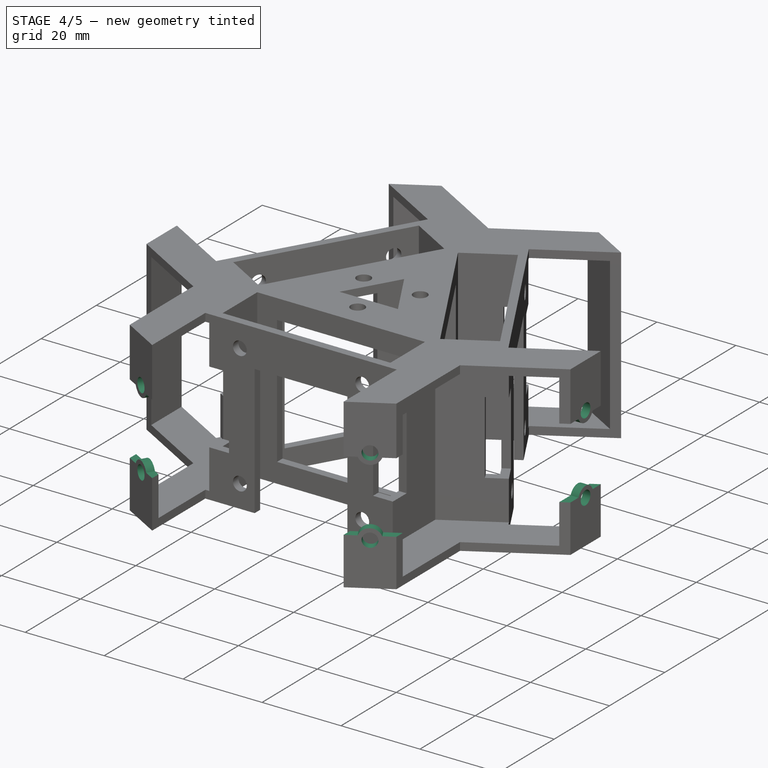
[diagram: stage 4 of 5 — iso view after this stage's code; geometry added in this stage tinted green]
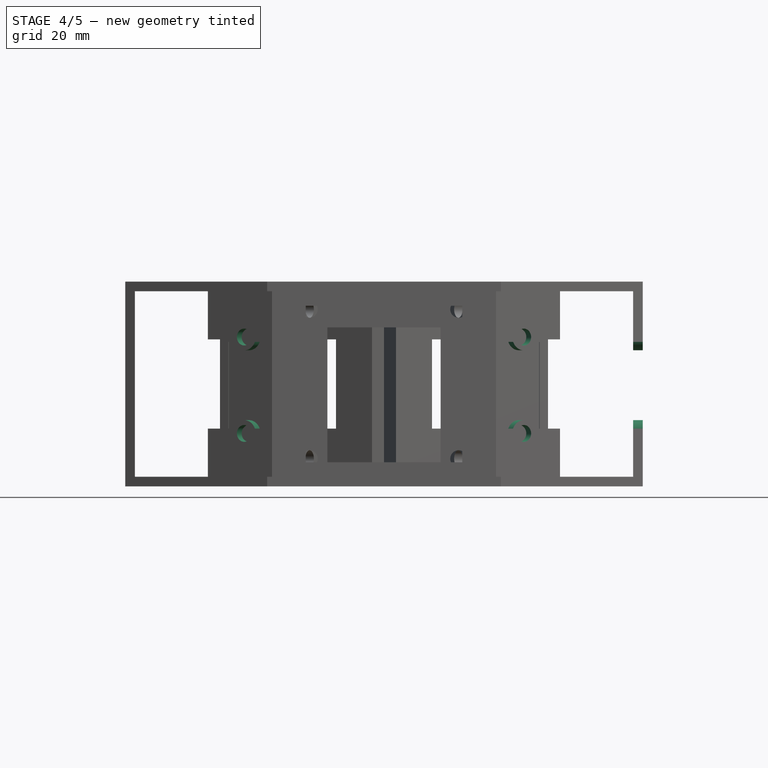
[diagram: stage 4 of 5 — front view after this stage's code; geometry added in this stage tinted green]
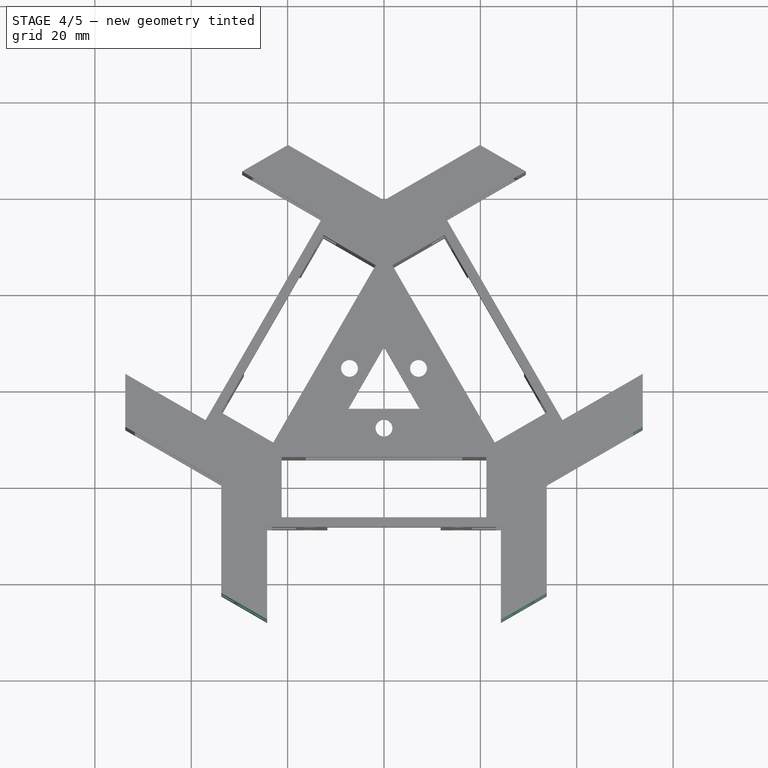
[diagram: stage 4 of 5 — top view after this stage's code; geometry added in this stage tinted green]
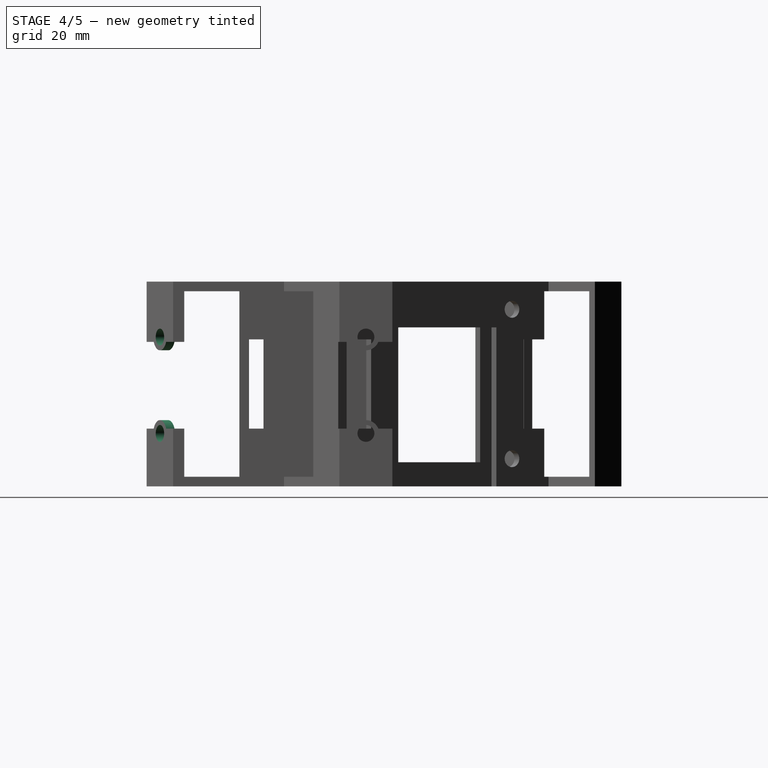
[diagram: stage 4 of 5 — right view after this stage's code; geometry added in this stage tinted green]
FEATURE [Sketcher::SketchObject] Sketch010
  ExternalGeometry = -> [Pad003]
  FullyConstrained = true
  MapMode = 5
  Placement = pos=(-26.8481,-46.5022,0) rot=(0.935113,-0.250563,-0.250563;1.63783rad)
  Support = -> [Pad003]
  sketch-geometry (10):
    g0: Circle CenterX=-2.5 CenterY=31 CenterZ=0 NormalX=0 NormalY=0 NormalZ=1 AngleXU=0 Radius=1.75
    g1: ArcOfCircle CenterX=-2.5 CenterY=31 CenterZ=0 NormalX=0 NormalY=0 NormalZ=1 AngleXU=0 Radius=2.75 StartAngle=3.51376 EndAngle=5.91102
    g2: Circle CenterX=-2.5 CenterY=11 CenterZ=0 NormalX=0 NormalY=0 NormalZ=1 AngleXU=0 Radius=1.75
    g3: ArcOfCircle CenterX=-2.5 CenterY=11 CenterZ=0 NormalX=0 NormalY=0 NormalZ=1 AngleXU=0 Radius=2.75 StartAngle=0.372169 EndAngle=2.76942
    g4: LineSegment StartX=-9.1547 StartY=30 StartZ=0 EndX=-5.06174 EndY=30 EndZ=0
    g5: LineSegment StartX=3 StartY=30 StartZ=0 EndX=3 EndY=12 EndZ=0
    g6: LineSegment StartX=3 StartY=12 StartZ=0 EndX=0.0617383 EndY=12 EndZ=0
    g7: LineSegment StartX=-9.1547 StartY=12 StartZ=0 EndX=-9.1547 EndY=30 EndZ=0
    g8: LineSegment StartX=0.0617383 StartY=30 StartZ=0 EndX=3 EndY=30 EndZ=0
    g9: LineSegment StartX=-5.06174 StartY=12 StartZ=0 EndX=-9.1547 EndY=12 EndZ=0
  constraints (30):
    c: Coincident(g1,g0)
    c: Coincident(g3,g2)
    c: Diameter(g0) = 3.5
    c: Diameter(g1) = 5.5
    c: Diameter(g2) = 3.5
    c: Diameter(g3) = 5.5
    c: Distance(g0,g-3) = 11.5
    c: Distance(g0,g2) = 20
    c: Distance(g0,g-5) = 5.5
    c: Distance(g2,g-5) = 5.5
    c: Coincident(g8,g5)
    c: Coincident(g5,g6)
    c: Coincident(g9,g7)
    c: Coincident(g7,g4)
    c: Horizontal(g4)
    c: Horizontal(g6)
    c: Vertical(g5)
    c: Vertical(g7)
    c: PointOnObject(g5,g-6)
    c: Distance(g0,g4) = 1
    c: Distance(g2,g6) = 1
    c: PointOnObject(g1,g4)
    c: Coincident(g4,g1)
    c: PointOnObject(g8,g1)
    c: Coincident(g9,g3)
    c: Tangent(g6,g9)
    c: Coincident(g6,g3)
    c: Equal(g7,g5)
    c: Equal(g8,g6)
    c: PointOnObject(g4,g-7)
FEATURE [PartDesign::Pocket] Pocket006
  BaseFeature = -> Pad003
  Length = 5
  Length2 = 100
  Profile = -> Sketch010
  Type = 0
FEATURE [Sketcher::SketchObject] Sketch011
  ExternalGeometry = -> [Pocket006]
  FullyConstrained = true
  MapMode = 5
  Placement = pos=(26.8481,-46.5022,0) rot=(0.935113,0.250563,0.250563;1.63783rad)
  Support = -> [Pocket006]
  sketch-geometry (10):
    g0: Circle CenterX=2.49992 CenterY=31 CenterZ=0 NormalX=0 NormalY=0 NormalZ=1 AngleXU=0 Radius=1.75
    g1: ArcOfCircle CenterX=2.49992 CenterY=31 CenterZ=0 NormalX=0 NormalY=0 NormalZ=1 AngleXU=0 Radius=2.75 StartAngle=3.51376 EndAngle=5.91102
    g2: Circle CenterX=2.49992 CenterY=11 CenterZ=0 NormalX=0 NormalY=0 NormalZ=1 AngleXU=0 Radius=1.75
    g3: ArcOfCircle CenterX=2.49992 CenterY=11 CenterZ=0 NormalX=0 NormalY=0 NormalZ=1 AngleXU=0 Radius=2.75 StartAngle=0.372169 EndAngle=2.76942
    g4: LineSegment StartX=-3.00008 StartY=30 StartZ=0 EndX=-0.0618147 EndY=30 EndZ=0
    g5: LineSegment StartX=9.15463 StartY=30 StartZ=0 EndX=9.15463 EndY=12 EndZ=0
    g6: LineSegment StartX=9.15463 StartY=12 StartZ=0 EndX=5.06166 EndY=12 EndZ=0
    g7: LineSegment StartX=-3.00008 StartY=12 StartZ=0 EndX=-3.00008 EndY=30 EndZ=0
    g8: LineSegment StartX=5.06166 StartY=30 StartZ=0 EndX=9.15463 EndY=30 EndZ=0
    g9: LineSegment StartX=-0.0618147 StartY=12 StartZ=0 EndX=-3.00008 EndY=12 EndZ=0
  constraints (30):
    c: Coincident(g1,g0)
    c: Coincident(g3,g2)
    c: Distance(g0,g-5) = 11.5
    c: Distance(g0,g2) = 20
    c: Distance(g0,g-3) = 5.5
    c: Distance(g2,g-3) = 5.5
    c: Diameter(g0) = 3.5
    c: Diameter(g1) = 5.5
    c: Diameter(g2) = 3.5
    c: Diameter(g3) = 5.5
    c: Coincident(g8,g5)
    c: Coincident(g5,g6)
    c: Coincident(g9,g7)
    c: Coincident(g7,g4)
    c: Horizontal(g4)
    c: Horizontal(g6)
    c: Vertical(g5)
    c: Vertical(g7)
    c: PointOnObject(g4,g-3)
    c: PointOnObject(g5,g-4)
    c: Distance(g0,g4) = 1
    c: Distance(g2,g6) = 1
    c: PointOnObject(g1,g4)
    c: Coincident(g4,g1)
    c: PointOnObject(g8,g1)
    c: Coincident(g9,g3)
    c: Tangent(g6,g9)
    c: Coincident(g6,g3)
    c: Equal(g7,g5)
    c: Equal(g6,g8)
FEATURE [PartDesign::Pocket] Pocket007
  BaseFeature = -> Pocket006
  Length = 5
  Length2 = 100
  Profile = -> Sketch011
  Type = 0
FEATURE [Sketcher::SketchObject] Sketch012
  ExternalGeometry = -> [Pocket007]
  FullyConstrained = false
  MapMode = 5
  Placement = pos=(53.6962,0,0) rot=(0.57735,0.57735,0.57735;2.0944rad)
  Support = -> [Pocket007]
  sketch-geometry (10):
    g0: Circle CenterX=-2.5 CenterY=31 CenterZ=0 NormalX=0 NormalY=0 NormalZ=1 AngleXU=0 Radius=1.75
    g1: ArcOfCircle CenterX=-2.5 CenterY=31 CenterZ=0 NormalX=0 NormalY=0 NormalZ=1 AngleXU=0 Radius=2.75 StartAngle=3.51376 EndAngle=5.91102
    g2: Circle CenterX=-2.5 CenterY=11 CenterZ=0 NormalX=0 NormalY=0 NormalZ=1 AngleXU=0 Radius=1.75
    g3: ArcOfCircle CenterX=-2.5 CenterY=11 CenterZ=0 NormalX=0 NormalY=0 NormalZ=1 AngleXU=0 Radius=2.75 StartAngle=0.372169 EndAngle=2.76942
    g4: LineSegment StartX=-9.1547 StartY=30 StartZ=0 EndX=-5.06174 EndY=30 EndZ=0
    g5: LineSegment StartX=3 StartY=30 StartZ=0 EndX=3 EndY=12 EndZ=0
    g6: LineSegment StartX=3 StartY=12 StartZ=0 EndX=0.0617377 EndY=12 EndZ=0
    g7: LineSegment StartX=-9.1547 StartY=12 StartZ=0 EndX=-9.1547 EndY=30 EndZ=0
    g8: LineSegment StartX=-5.06174 StartY=12 StartZ=0 EndX=-9.1547 EndY=12 EndZ=0
    g9: LineSegment StartX=0.0617377 StartY=30 StartZ=0 EndX=3 EndY=30 EndZ=0
  constraints (29):
    c: Coincident(g1,g0)
    c: Coincident(g3,g2)
    c: Distance(g0,g-5) = 11.5
    c: Distance(g0,g-3) = 5.5
    c: Distance(g2,g-3) = 5.5
    c: Distance(g2,g0) = 20
    c: Diameter(g0) = 3.5
    c: Diameter(g1) = 5.5
    c: Diameter(g2) = 3.5
    c: Diameter(g3) = 5.5
    c: Coincident(g9,g5)
    c: Coincident(g5,g6)
    c: Coincident(g8,g7)
    c: Coincident(g7,g4)
    c: Horizontal(g4)
    c: Horizontal(g6)
    c: Vertical(g5)
    c: Vertical(g7)
    c: PointOnObject(g4,g-4)
    c: PointOnObject(g5,g-3)
    c: Distance(g0,g4) = 1
    c: Distance(g2,g6) = 1
    c: PointOnObject(g1,g4)
    c: Coincident(g8,g3)
    c: Tangent(g6,g8)
    c: Coincident(g6,g3)
    c: Coincident(g4,g1)
    c: PointOnObject(g9,g1)
    c: Equal(g7,g5)
FEATURE [PartDesign::Pocket] Pocket008
  BaseFeature = -> Pocket007
  Length = 5
  Length2 = 100
  Profile = -> Sketch012
  Type = 0
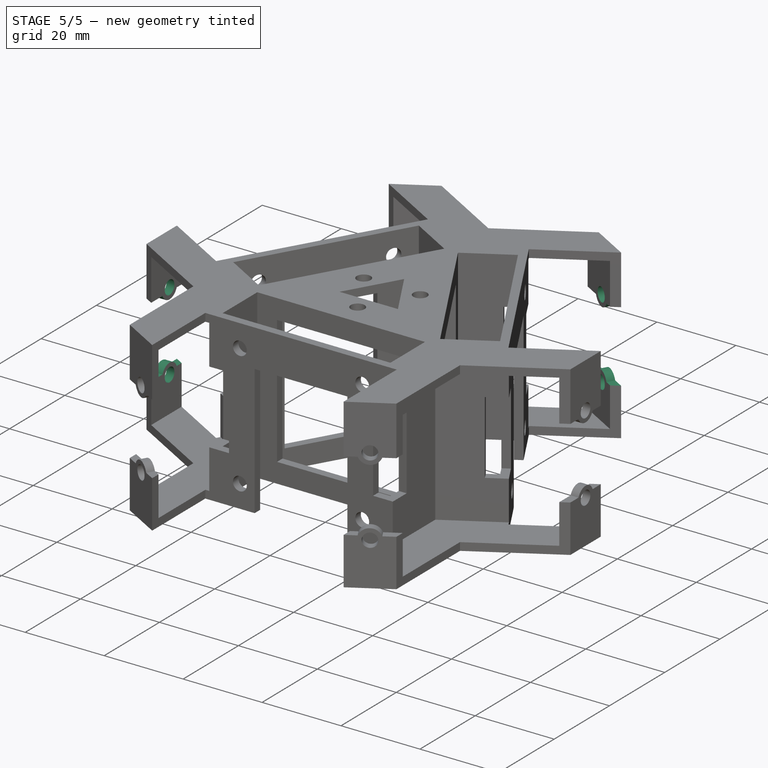
[diagram: stage 5 of 5 — iso view after this stage's code; geometry added in this stage tinted green]
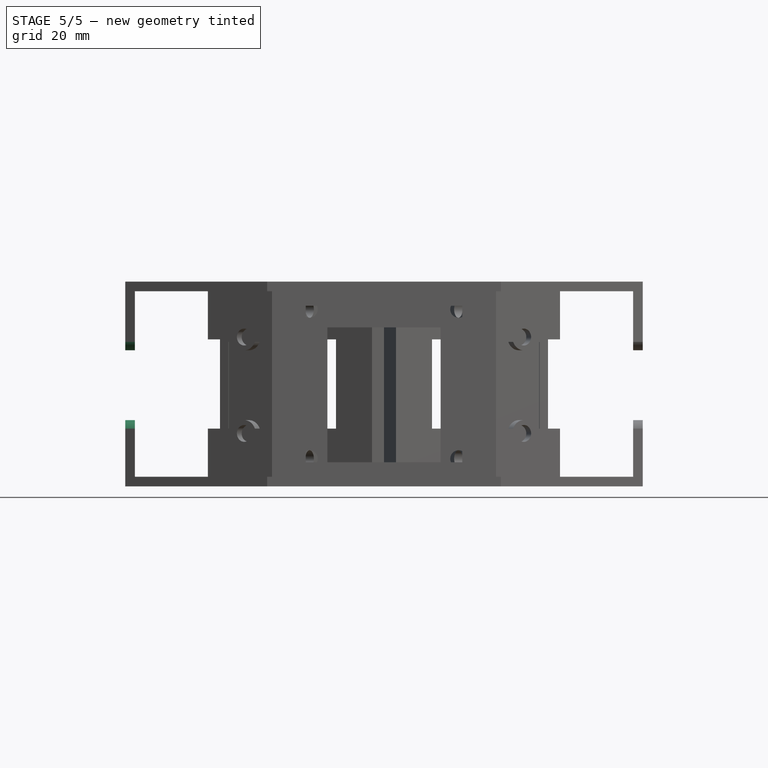
[diagram: stage 5 of 5 — front view after this stage's code; geometry added in this stage tinted green]
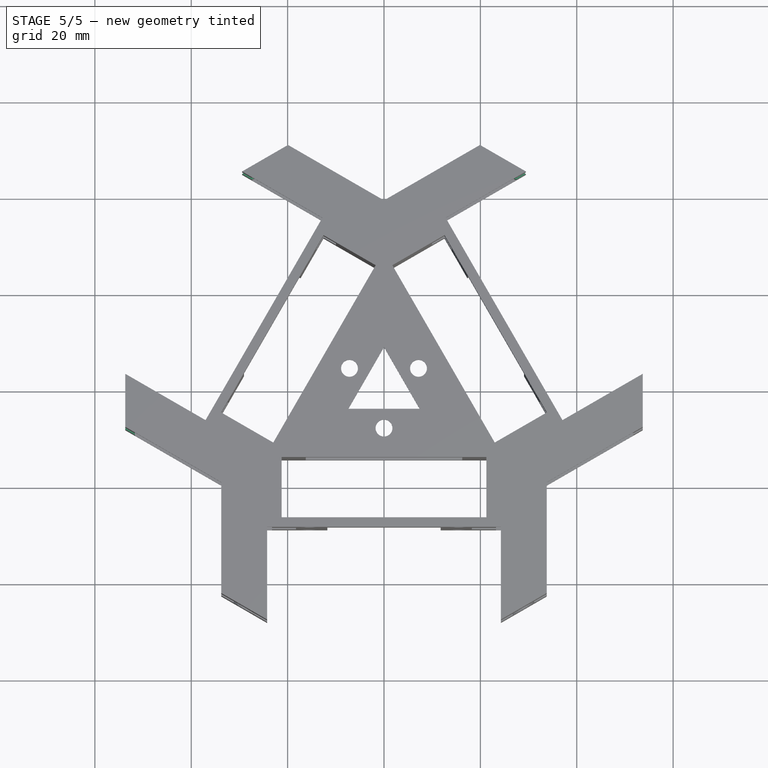
[diagram: stage 5 of 5 — top view after this stage's code; geometry added in this stage tinted green]
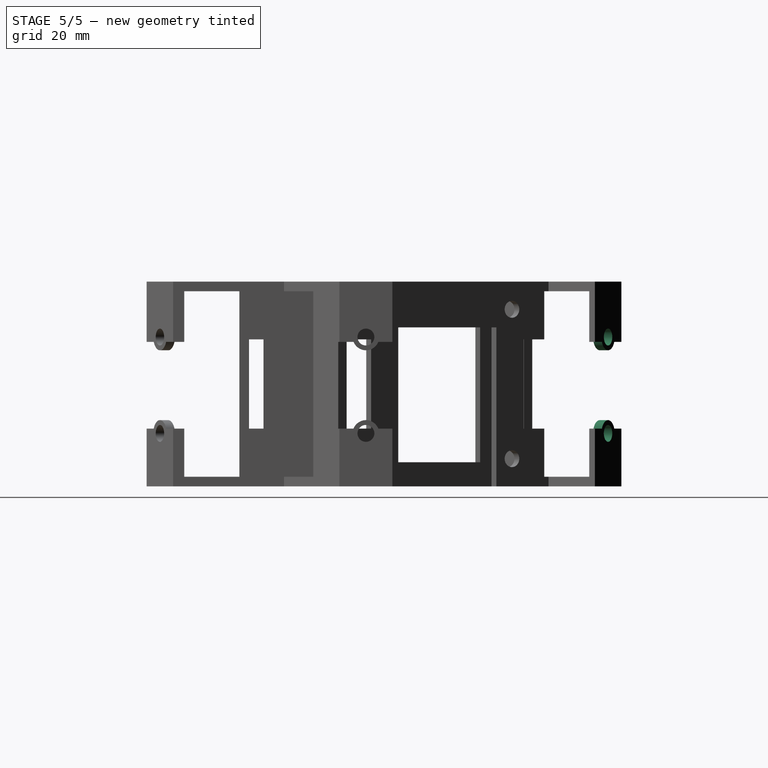
[diagram: stage 5 of 5 — right view after this stage's code; geometry added in this stage tinted green]
FEATURE [Sketcher::SketchObject] Sketch013
  ExternalGeometry = -> [Pocket008]
  FullyConstrained = true
  MapMode = 5
  Placement = pos=(26.8481,46.5022,0) rot=(0.186157,0.694747,0.694747;2.77349rad)
  Support = -> [Pocket008]
  sketch-geometry (10):
    g0: Circle CenterX=2.5 CenterY=31 CenterZ=0 NormalX=0 NormalY=0 NormalZ=1 AngleXU=0 Radius=1.75
    g1: ArcOfCircle CenterX=2.5 CenterY=31 CenterZ=0 NormalX=0 NormalY=0 NormalZ=1 AngleXU=0 Radius=2.75 StartAngle=3.51376 EndAngle=5.91102
    g2: Circle CenterX=2.5 CenterY=11 CenterZ=0 NormalX=0 NormalY=0 NormalZ=1 AngleXU=0 Radius=1.75
    g3: ArcOfCircle CenterX=2.5 CenterY=11 CenterZ=0 NormalX=0 NormalY=0 NormalZ=1 AngleXU=0 Radius=2.75 StartAngle=0.372169 EndAngle=2.76942
    g4: LineSegment StartX=-3 StartY=30 StartZ=0 EndX=-0.0617374 EndY=30 EndZ=0
    g5: LineSegment StartX=9.1547 StartY=30 StartZ=0 EndX=9.1547 EndY=12 EndZ=0
    g6: LineSegment StartX=9.1547 StartY=12 StartZ=0 EndX=5.06174 EndY=12 EndZ=0
    g7: LineSegment StartX=-3 StartY=12 StartZ=0 EndX=-3 EndY=30 EndZ=0
    g8: LineSegment StartX=-0.0617374 StartY=12 StartZ=0 EndX=-3 EndY=12 EndZ=0
    g9: LineSegment StartX=5.06174 StartY=30 StartZ=0 EndX=9.1547 EndY=30 EndZ=0
  constraints (28):
    c: Coincident(g1,g0)
    c: Coincident(g3,g2)
    c: Distance(g0,g-3) = 11.5
    c: Distance(g2,g0) = 20
    c: Distance(g0,g-5) = 5.5
    c: Distance(g2,g-5) = 5.5
    c: Diameter(g0) = 3.5
    c: Diameter(g1) = 5.5
    c: Diameter(g2) = 3.5
    c: Diameter(g3) = 5.5
    c: Coincident(g9,g5)
    c: Coincident(g5,g6)
    c: Coincident(g8,g7)
    c: Coincident(g7,g4)
    c: Horizontal(g4)
    c: Horizontal(g6)
    c: Vertical(g5)
    c: Vertical(g7)
    c: PointOnObject(g4,g-5)
    c: PointOnObject(g5,g-4)
    c: Distance(g0,g4) = 1
    c: Distance(g2,g6) = 1
    c: Coincident(g8,g3)
    c: Tangent(g6,g8)
    c: Coincident(g6,g3)
    c: Coincident(g9,g1)
    c: Tangent(g4,g9)
    c: Coincident(g4,g1)
FEATURE [PartDesign::Pocket] Pocket009
  BaseFeature = -> Pocket008
  Length = 5
  Length2 = 100
  Profile = -> Sketch013
  Type = 0
FEATURE [Sketcher::SketchObject] Sketch014
  ExternalGeometry = -> [Pocket009]
  FullyConstrained = true
  MapMode = 5
  Placement = pos=(-53.6962,0,0) rot=(0.57735,-0.57735,-0.57735;2.0944rad)
  Support = -> [Pocket009]
  sketch-geometry (10):
    g0: ArcOfCircle CenterX=2.5 CenterY=31 CenterZ=0 NormalX=0 NormalY=0 NormalZ=1 AngleXU=0 Radius=2.75 StartAngle=3.51376 EndAngle=5.91102
    g1: Circle CenterX=2.5 CenterY=31 CenterZ=0 NormalX=0 NormalY=0 NormalZ=1 AngleXU=0 Radius=1.75
    g2: Circle CenterX=2.5 CenterY=11 CenterZ=0 NormalX=0 NormalY=0 NormalZ=1 AngleXU=0 Radius=1.75
    g3: ArcOfCircle CenterX=2.5 CenterY=11 CenterZ=0 NormalX=0 NormalY=0 NormalZ=1 AngleXU=0 Radius=2.75 StartAngle=0.372169 EndAngle=2.76942
    g4: LineSegment StartX=-3 StartY=30 StartZ=0 EndX=-0.0617377 EndY=30 EndZ=0
    g5: LineSegment StartX=9.1547 StartY=30 StartZ=0 EndX=9.1547 EndY=12 EndZ=0
    g6: LineSegment StartX=9.1547 StartY=12 StartZ=0 EndX=5.06174 EndY=12 EndZ=0
    g7: LineSegment StartX=-3 StartY=12 StartZ=0 EndX=-3 EndY=30 EndZ=0
    g8: LineSegment StartX=-0.0617377 StartY=12 StartZ=0 EndX=-3 EndY=12 EndZ=0
    g9: LineSegment StartX=5.06174 StartY=30 StartZ=0 EndX=9.1547 EndY=30 EndZ=0
  constraints (30):
    c: Coincident(g1,g0)
    c: Coincident(g3,g2)
    c: Distance(g0,g-4) = 11.5
    c: Distance(g0,g-3) = 5.5
    c: Distance(g2,g0) = 20
    c: Distance(g2,g-3) = 5.5
    c: Diameter(g0) = 5.5
    c: Diameter(g1) = 3.5
    c: Diameter(g2) = 3.5
    c: Diameter(g3) = 5.5
    c: Coincident(g9,g5)
    c: Coincident(g5,g6)
    c: Coincident(g8,g7)
    c: Coincident(g7,g4)
    c: Horizontal(g4)
    c: Horizontal(g6)
    c: Vertical(g5)
    c: Vertical(g7)
    c: PointOnObject(g4,g-3)
    c: PointOnObject(g5,g-5)
    c: Distance(g0,g4) = 1
    c: Distance(g2,g6) = 1
    c: PointOnObject(g0,g4)
    c: Coincident(g8,g3)
    c: Tangent(g6,g8)
    c: Coincident(g6,g3)
    c: Coincident(g4,g0)
    c: PointOnObject(g9,g0)
    c: Equal(g7,g5)
    c: Equal(g6,g9)
FEATURE [PartDesign::Pocket] Pocket010
  BaseFeature = -> Pocket009
  Length = 5
  Length2 = 100
  Profile = -> Sketch014
  Type = 0
FEATURE [Sketcher::SketchObject] Sketch015
  ExternalGeometry = -> [Pocket010]
  FullyConstrained = true
  MapMode = 5
  Placement = pos=(-26.8481,46.5022,0) rot=(-0.186157,0.694747,0.694747;3.50969rad)
  Support = -> [Pocket010]
  sketch-geometry (10):
    g0: Circle CenterX=-2.5 CenterY=31 CenterZ=0 NormalX=0 NormalY=0 NormalZ=1 AngleXU=0 Radius=1.75
    g1: ArcOfCircle CenterX=-2.5 CenterY=31 CenterZ=0 NormalX=0 NormalY=0 NormalZ=1 AngleXU=0 Radius=2.75 StartAngle=3.51376 EndAngle=5.91102
    g2: Circle CenterX=-2.5 CenterY=11 CenterZ=0 NormalX=0 NormalY=0 NormalZ=1 AngleXU=0 Radius=1.75
    g3: ArcOfCircle CenterX=-2.5 CenterY=11 CenterZ=0 NormalX=0 NormalY=0 NormalZ=1 AngleXU=0 Radius=2.75 StartAngle=0.372169 EndAngle=2.76942
    g4: LineSegment StartX=-9.1547 StartY=30 StartZ=0 EndX=-5.06174 EndY=30 EndZ=0
    g5: LineSegment StartX=3 StartY=30 StartZ=0 EndX=3 EndY=12 EndZ=0
    g6: LineSegment StartX=3 StartY=12 StartZ=0 EndX=0.0617374 EndY=12 EndZ=0
    g7: LineSegment StartX=-9.1547 StartY=12 StartZ=0 EndX=-9.1547 EndY=30 EndZ=0
    g8: LineSegment StartX=-5.06174 StartY=12 StartZ=0 EndX=-9.1547 EndY=12 EndZ=0
    g9: LineSegment StartX=0.0617374 StartY=30 StartZ=0 EndX=3 EndY=30 EndZ=0
  constraints (30):
    c: Coincident(g1,g0)
    c: Coincident(g3,g2)
    c: Distance(g0,g-3) = 11.5
    c: Distance(g0,g2) = 20
    c: Distance(g0,g-4) = 5.5
    c: Distance(g2,g-4) = 5.5
    c: Diameter(g0) = 3.5
    c: Diameter(g1) = 5.5
    c: Diameter(g2) = 3.5
    c: Diameter(g3) = 5.5
    c: Coincident(g9,g5)
    c: Coincident(g5,g6)
    c: Coincident(g8,g7)
    c: Coincident(g7,g4)
    c: Horizontal(g4)
    c: Horizontal(g6)
    c: Vertical(g5)
    c: Vertical(g7)
    c: PointOnObject(g4,g-6)
    c: PointOnObject(g5,g-4)
    c: Distance(g0,g4) = 1
    c: Distance(g2,g6) = 1
    c: PointOnObject(g1,g4)
    c: Coincident(g8,g3)
    c: Tangent(g6,g8)
    c: Coincident(g6,g3)
    c: Coincident(g4,g1)
    c: PointOnObject(g9,g1)
    c: Equal(g7,g5)
    c: Equal(g6,g9)
FEATURE [PartDesign::Pocket] Pocket011
  BaseFeature = -> Pocket010
  Length = 5
  Length2 = 100
  Profile = -> Sketch015
  Type = 0
FEATURE [PartDesign::Body] Body
  Group = -> [Sketch,Pad,Sketch001,Pocket,Sketch002,Pocket001,Sketch003,Pocket002,Sketch004,Pocket003,Sketch005,Pocket004,Sketch006,Pocket005,Sketch007,Pad001,Sketch008,Pad002,Sketch009,Pad003,Sketch010,Pocket006,Sketch011,Pocket007,Sketch012,Pocket008,Sketch013,Pocket009,Sketch014,Pocket010,Sketch015,Pocket011]
  Origin = -> Origin
  Tip = -> Pocket011
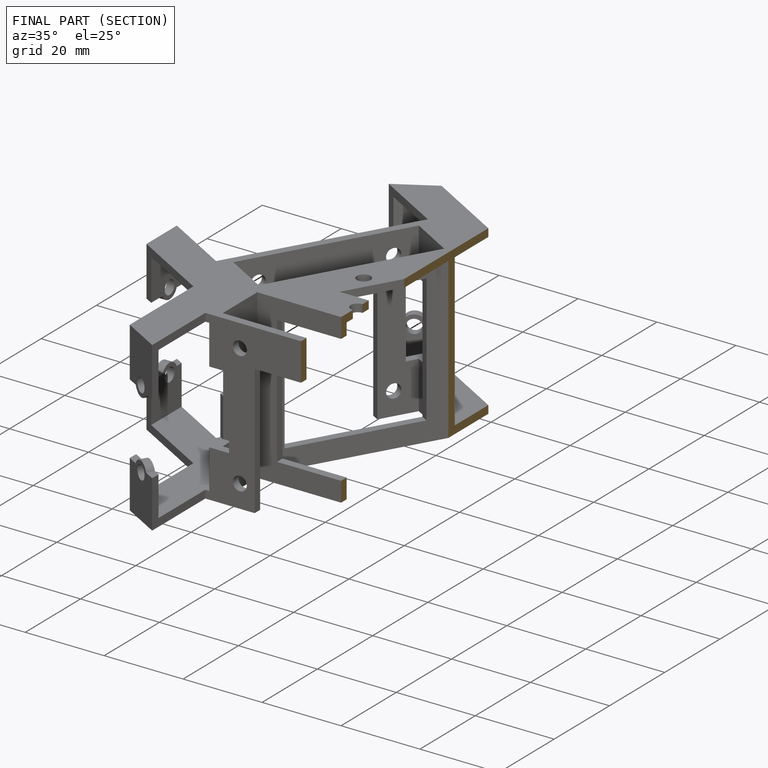
[diagram: finished part — half-section view (interior)]
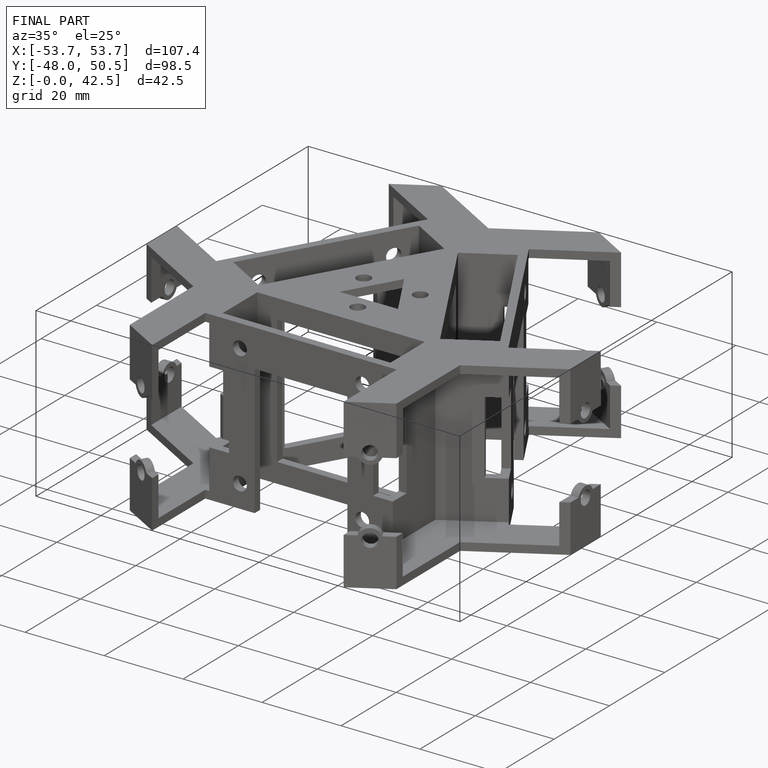
[diagram: finished part — iso view with bounding-box wireframe]
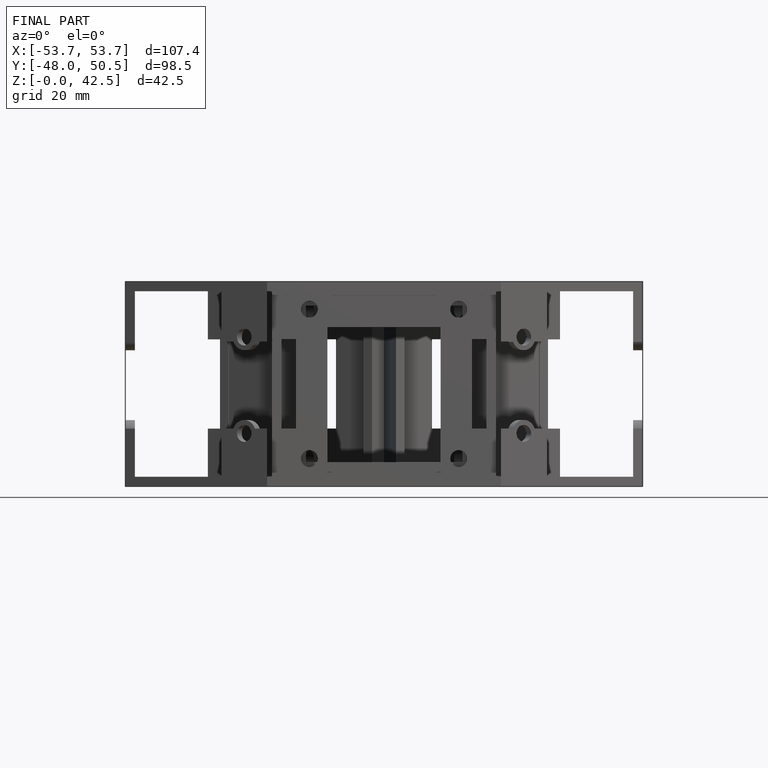
[diagram: finished part — front view with bounding-box wireframe]
